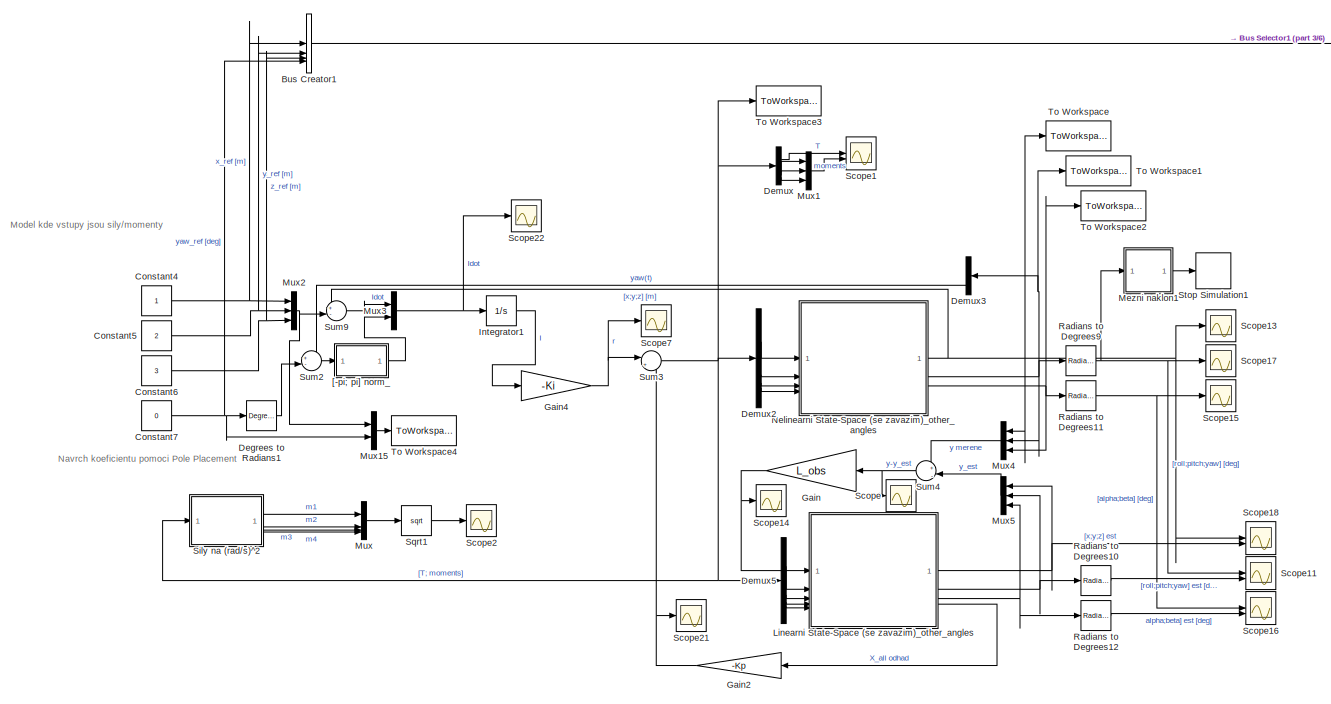
[diagram: root canvas - part 1/6, top left region]
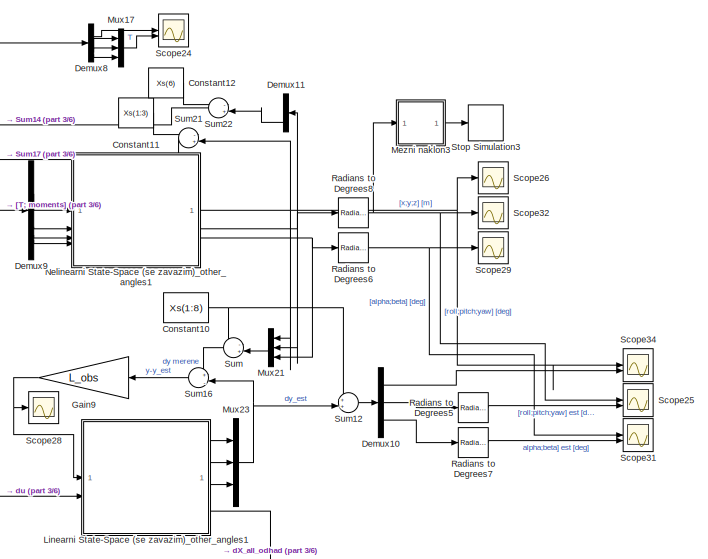
[diagram: root canvas - part 2/6, top right region]
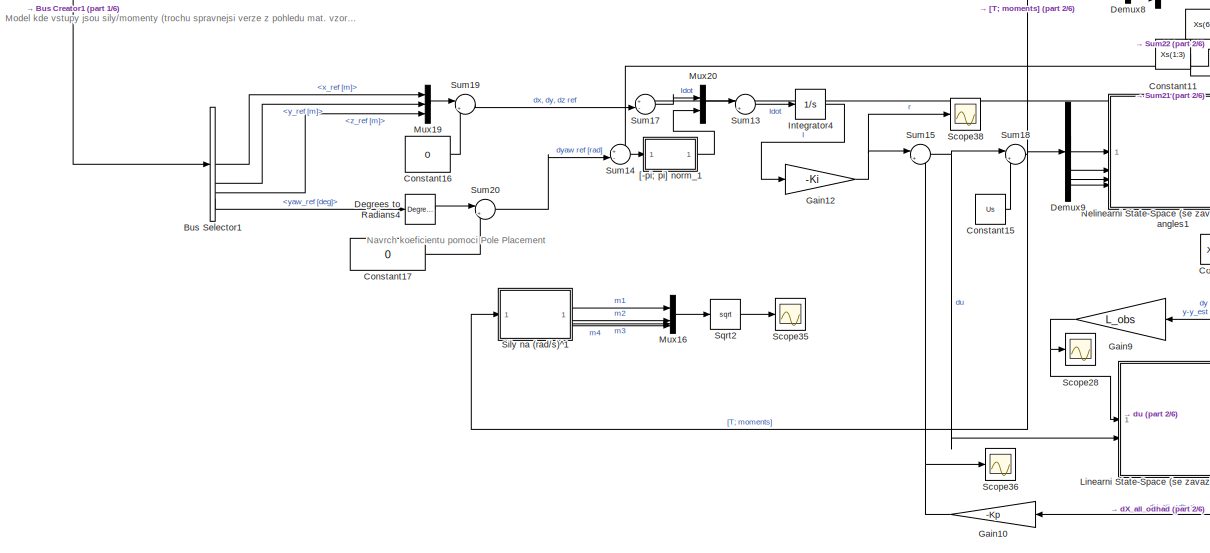
[diagram: root canvas - part 3/6, top right region]
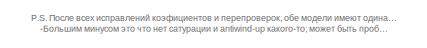
[diagram: root canvas - part 4/6, middle left region]
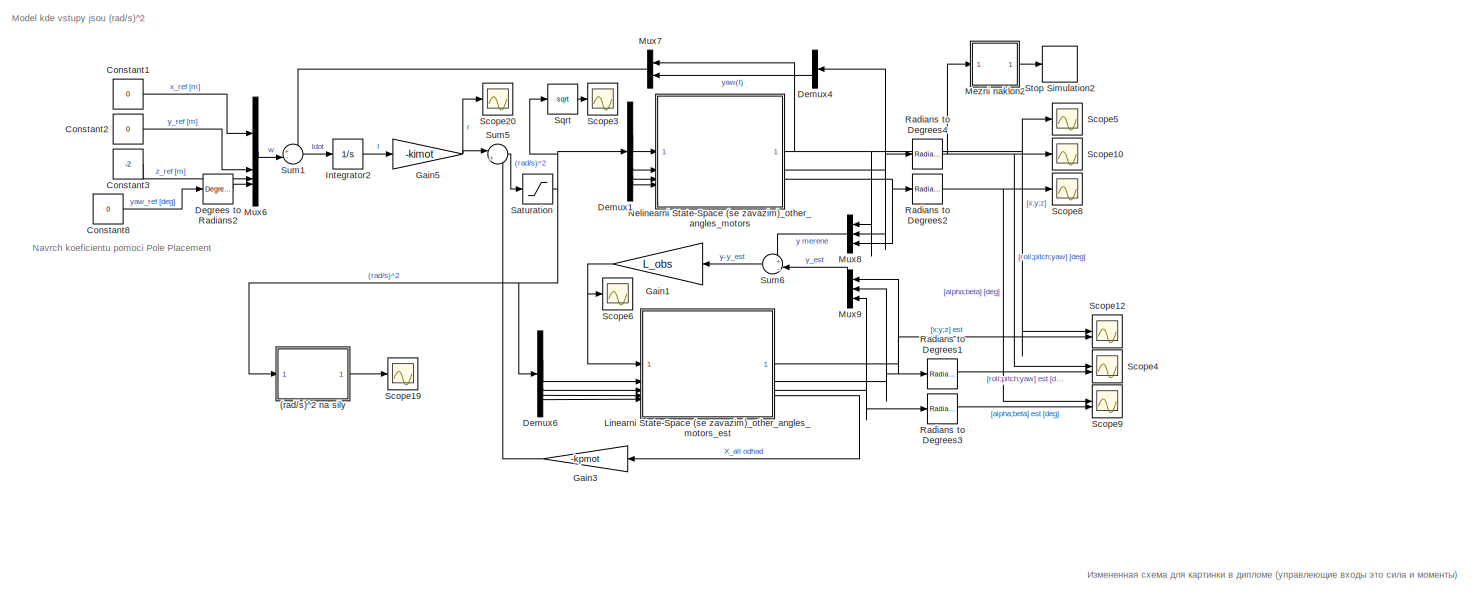
[diagram: root canvas - part 5/6, middle left region]
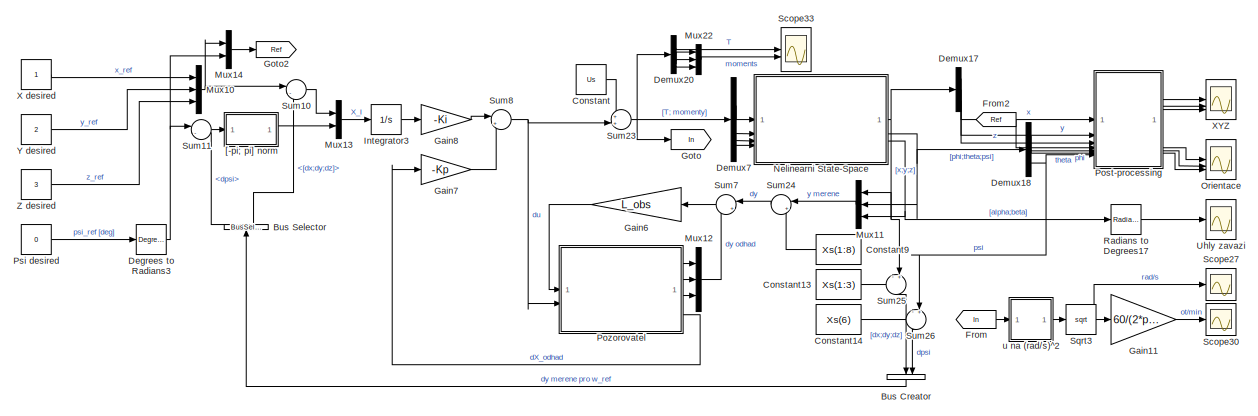
[diagram: root canvas - part 6/6, bottom center region]
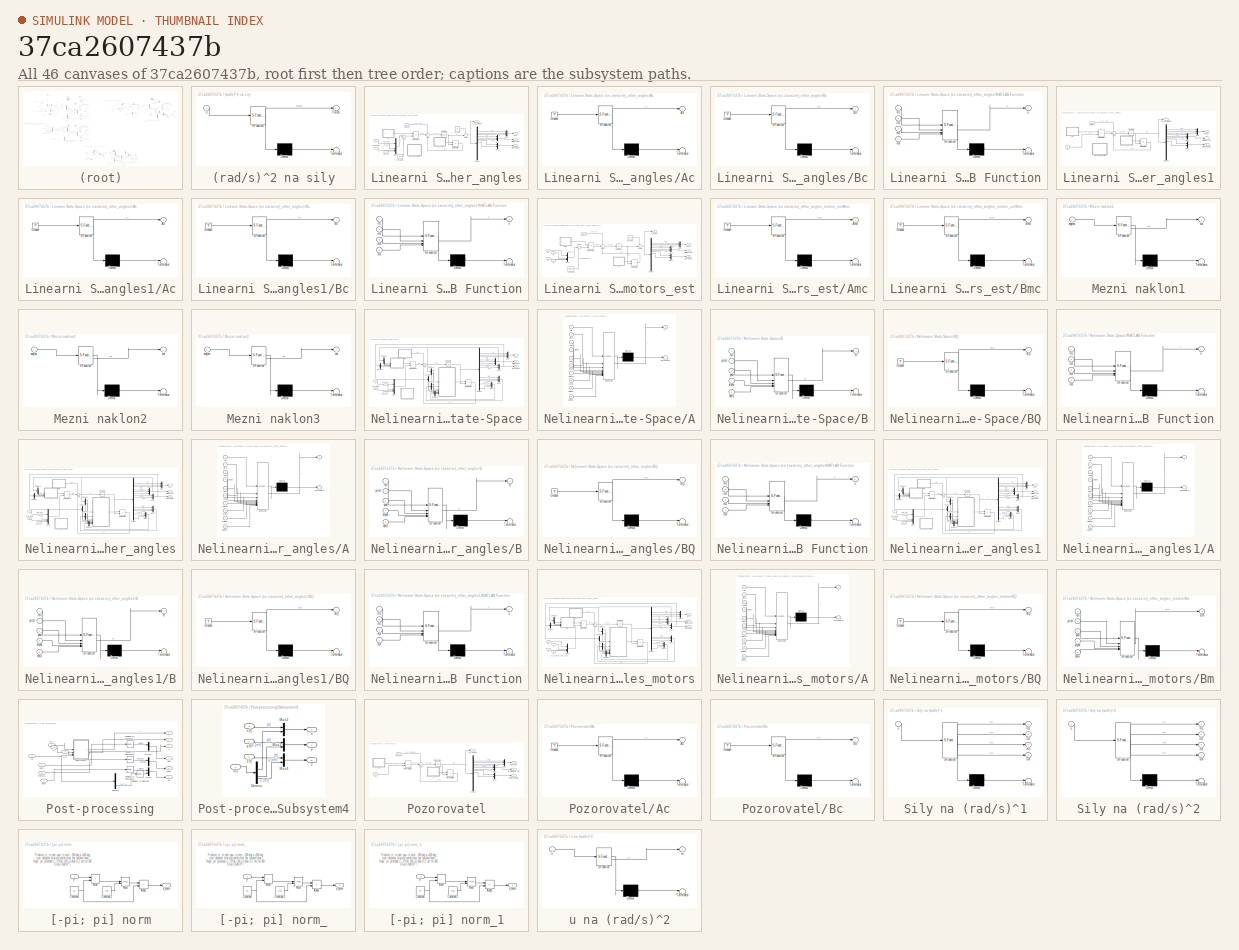
[diagram: thumbnail index - all 46 canvases of the model, root first then tree order]
MODEL slx_37ca2607437b
KIND model
CONFIG AbsTol = auto
CONFIG EnableMultiTasking = off
CONFIG FixedStep = 0.01
CONFIG MaxStep = auto
CONFIG MinStep = auto
CONFIG RelTol = 1e-3
CONFIG SampleTimeConstraint = Unconstrained
CONFIG SolverName = ode4
CONFIG StartTime = 0.0
CONFIG StopTime = 16
BLOCK [SubSystem] (rad//s)^2 na sily
  Commented = on
  ErrorFcn = Stateflow.Translate.translate
  PermitHierarchicalResolution = ExplicitOnly
  SFBlockType = MATLAB Function
  TreatAsAtomicUnit = on
BLOCK [Demux] (rad//s)^2 na sily/ Demux 
  Outputs = 1
BLOCK [S-Function] (rad//s)^2 na sily/ SFunction 
  EnableBusSupport = on
  FunctionName = sf_sfun
  Parameters = b_moment,k_thrust,l
  PortCounts = [1 2]
  SFcnIsStateOwnerBlock = off
  SFunctionDeploymentMode = off
  Tag = Stateflow S-Function 14
BLOCK [Terminator] (rad//s)^2 na sily/ Terminator 
BLOCK [Outport] (rad//s)^2 na sily/Forces
BLOCK [Inport] (rad//s)^2 na sily/U
BLOCK [BusCreator] Bus Creator
  Commented = on
  DisplayOption = bar
  InheritFromInputs = on
  Inputs = 2
  NameLocation = left
BLOCK [BusCreator] Bus Creator1
  DisplayOption = bar
  InheritFromInputs = on
  Inputs = 4
BLOCK [BusSelector] Bus Selector
  Commented = on
  NameLocation = right
  OutputSignals = dpsi,[dx;dy;dz]
BLOCK [BusSelector] Bus Selector1
  OutputSignals = x_ref [m],y_ref [m],z_ref [m],yaw_ref [deg]
BLOCK [Constant] Constant
  Commented = on
  Value = Us
BLOCK [Constant] Constant1
  Commented = on
  Value = 0
BLOCK [Constant] Constant10
  Value = Xs(1:8)
BLOCK [Constant] Constant11
  Value = Xs(1:3)
BLOCK [Constant] Constant12
  Value = Xs(6)
BLOCK [Constant] Constant13
  Commented = on
  Value = Xs(1:3)
BLOCK [Constant] Constant14
  Commented = on
  Value = Xs(6)
BLOCK [Constant] Constant15
  Value = Us
BLOCK [Constant] Constant16
  Value = 0
BLOCK [Constant] Constant17
  Value = 0
BLOCK [Constant] Constant2
  Commented = on
  Value = 0
BLOCK [Constant] Constant3
  Commented = on
  Value = -2
BLOCK [Constant] Constant4
BLOCK [Constant] Constant5
  Value = 2
BLOCK [Constant] Constant6
  Value = 3
BLOCK [Constant] Constant7
  Value = 0
BLOCK [Constant] Constant8
  Commented = on
  Value = 0
BLOCK [Constant] Constant9
  Commented = on
  Value = Xs(1:8)
BLOCK [Reference] Degrees to Radians1  REF=simulink_extras/Transformations/Degrees to
Radians
  SourceBlock = simulink_extras/Transformations/Degrees to\nRadians
  SourceType = DegreesToRadians
BLOCK [Reference] Degrees to Radians2  REF=simulink_extras/Transformations/Degrees to
Radians
  Commented = on
  SourceBlock = simulink_extras/Transformations/Degrees to\nRadians
  SourceType = DegreesToRadians
BLOCK [Reference] Degrees to Radians3  REF=simulink_extras/Transformations/Degrees to
Radians
  Commented = on
  SourceBlock = simulink_extras/Transformations/Degrees to\nRadians
  SourceType = DegreesToRadians
BLOCK [Reference] Degrees to Radians4  REF=simulink_extras/Transformations/Degrees to
Radians
  SourceBlock = simulink_extras/Transformations/Degrees to\nRadians
  SourceType = DegreesToRadians
BLOCK [Demux] Demux
BLOCK [Demux] Demux1
  Commented = on
BLOCK [Demux] Demux10
  Outputs = 3
BLOCK [Demux] Demux11
  Outputs = 3
BLOCK [Demux] Demux17
  Commented = on
  Outputs = 3
BLOCK [Demux] Demux18
  Commented = on
  Outputs = 3
BLOCK [Demux] Demux2
BLOCK [Demux] Demux20
  Commented = on
BLOCK [Demux] Demux3
  Outputs = 3
BLOCK [Demux] Demux4
  Commented = on
  Outputs = 3
BLOCK [Demux] Demux5
BLOCK [Demux] Demux6
  Commented = on
BLOCK [Demux] Demux7
  Commented = on
BLOCK [Demux] Demux8
BLOCK [Demux] Demux9
BLOCK [From] From
  Commented = on
  GotoTag = In
BLOCK [From] From2
  Commented = on
  GotoTag = Ref
BLOCK [Gain] Gain
  Gain = L_obs
  Multiplication = Matrix(K*u)
BLOCK [Gain] Gain1
  Commented = on
  Gain = L_obs
  Multiplication = Matrix(K*u)
BLOCK [Gain] Gain10
  Gain = -Kp
  Multiplication = Matrix(K*u)
BLOCK [Gain] Gain11
  Commented = on
  Gain = 60/(2*pi)
BLOCK [Gain] Gain12
  Gain = -Ki
  Multiplication = Matrix(K*u)
BLOCK [Gain] Gain2
  Gain = -Kp
  Multiplication = Matrix(K*u)
BLOCK [Gain] Gain3
  Commented = on
  Gain = -kpmot
  Multiplication = Matrix(K*u)
BLOCK [Gain] Gain4
  Gain = -Ki
  Multiplication = Matrix(K*u)
BLOCK [Gain] Gain5
  Commented = on
  Gain = -kimot
  Multiplication = Matrix(K*u)
BLOCK [Gain] Gain6
  Commented = on
  Gain = L_obs
  Multiplication = Matrix(K*u)
BLOCK [Gain] Gain7
  Commented = on
  Gain = -Kp
  Multiplication = Matrix(K*u)
BLOCK [Gain] Gain8
  Commented = on
  Gain = -Ki
  Multiplication = Matrix(K*u)
BLOCK [Gain] Gain9
  Gain = L_obs
  Multiplication = Matrix(K*u)
BLOCK [Goto] Goto
  Commented = on
  GotoTag = In
BLOCK [Goto] Goto2
  Commented = on
  GotoTag = Ref
BLOCK [Integrator] Integrator1
  InitialCondition = init_int_ref
BLOCK [Integrator] Integrator2
  Commented = on
  InitialCondition = init_int_ref_motor
BLOCK [Integrator] Integrator3
  Commented = on
  InitialCondition = init_int_dref
BLOCK [Integrator] Integrator4
  InitialCondition = init_int_dref
BLOCK [SubSystem] Linearni State-Space (se zavazim)_other_angles
BLOCK [SubSystem] Linearni State-Space (se zavazim)_other_angles/Ac
  ErrorFcn = Stateflow.Translate.translate
  PermitHierarchicalResolution = ExplicitOnly
  SFBlockType = MATLAB Function
  TreatAsAtomicUnit = on
BLOCK [Demux] Linearni State-Space (se zavazim)_other_angles/Ac/ Demux 
  Outputs = 1
BLOCK [Ground] Linearni State-Space (se zavazim)_other_angles/Ac/ Ground 
BLOCK [S-Function] Linearni State-Space (se zavazim)_other_angles/Ac/ SFunction 
  EnableBusSupport = on
  FunctionName = sf_sfun
  Parameters = Ip,M,d,g,m
  PortCounts = [1 2]
  SFcnIsStateOwnerBlock = off
  SFunctionDeploymentMode = off
  Tag = Stateflow S-Function 4
BLOCK [Terminator] Linearni State-Space (se zavazim)_other_angles/Ac/ Terminator 
BLOCK [Outport] Linearni State-Space (se zavazim)_other_angles/Ac/Ac
BLOCK [SubSystem] Linearni State-Space (se zavazim)_other_angles/Bc
  ErrorFcn = Stateflow.Translate.translate
  PermitHierarchicalResolution = ExplicitOnly
  SFBlockType = MATLAB Function
  TreatAsAtomicUnit = on
BLOCK [Demux] Linearni State-Space (se zavazim)_other_angles/Bc/ Demux 
  Outputs = 1
BLOCK [Ground] Linearni State-Space (se zavazim)_other_angles/Bc/ Ground 
BLOCK [S-Function] Linearni State-Space (se zavazim)_other_angles/Bc/ SFunction 
  EnableBusSupport = on
  FunctionName = sf_sfun
  Parameters = Ixx,Iyy,Izz,M,m
  PortCounts = [1 2]
  SFcnIsStateOwnerBlock = off
  SFunctionDeploymentMode = off
  Tag = Stateflow S-Function 5
BLOCK [Terminator] Linearni State-Space (se zavazim)_other_angles/Bc/ Terminator 
BLOCK [Outport] Linearni State-Space (se zavazim)_other_angles/Bc/Bc
BLOCK [Constant] Linearni State-Space (se zavazim)_other_angles/Constant
  Value = Xs
BLOCK [Constant] Linearni State-Space (se zavazim)_other_angles/Constant1
  Value = Us
BLOCK [Demux] Linearni State-Space (se zavazim)_other_angles/Demux
  Outputs = 16
BLOCK [Integrator] Linearni State-Space (se zavazim)_other_angles/Integrator1
  InitialCondition = Xinit_ss - Xs
BLOCK [Inport] Linearni State-Space (se zavazim)_other_angles/Korekce
BLOCK [SubSystem] Linearni State-Space (se zavazim)_other_angles/MATLAB Function
  Commented = on
  ErrorFcn = Stateflow.Translate.translate
  PermitHierarchicalResolution = ExplicitOnly
  SFBlockType = MATLAB Function
  TreatAsAtomicUnit = on
BLOCK [Demux] Linearni State-Space (se zavazim)_other_angles/MATLAB Function/ Demux 
  Outputs = 1
BLOCK [S-Function] Linearni State-Space (se zavazim)_other_angles/MATLAB Function/ SFunction 
  EnableBusSupport = on
  FunctionName = sf_sfun
  Parameters = L,b_moment,k_thrust
  PortCounts = [4 2]
  SFcnIsStateOwnerBlock = off
  SFunctionDeploymentMode = off
  Tag = Stateflow S-Function 6
BLOCK [Terminator] Linearni State-Space (se zavazim)_other_angles/MATLAB Function/ Terminator 
BLOCK [Inport] Linearni State-Space (se zavazim)_other_angles/MATLAB Function/m1
BLOCK [Inport] Linearni State-Space (se zavazim)_other_angles/MATLAB Function/m2
  Port = 2
BLOCK [Inport] Linearni State-Space (se zavazim)_other_angles/MATLAB Function/m3
  Port = 3
BLOCK [Inport] Linearni State-Space (se zavazim)_other_angles/MATLAB Function/m4
  Port = 4
BLOCK [Outport] Linearni State-Space (se zavazim)_other_angles/MATLAB Function/u
BLOCK [Product] Linearni State-Space (se zavazim)_other_angles/MatrixMultiply
  Multiplication = Matrix(*)
BLOCK [Product] Linearni State-Space (se zavazim)_other_angles/MatrixMultiply1
  Multiplication = Matrix(*)
BLOCK [Mux] Linearni State-Space (se zavazim)_other_angles/Mux
  DisplayOption = bar
  Inputs = 3
BLOCK [Mux] Linearni State-Space (se zavazim)_other_angles/Mux1
  DisplayOption = bar
  Inputs = 3
BLOCK [Mux] Linearni State-Space (se zavazim)_other_angles/Mux2
  DisplayOption = bar
  Inputs = 2
BLOCK [Mux] Linearni State-Space (se zavazim)_other_angles/Mux5
  DisplayOption = bar
BLOCK [Sum] Linearni State-Space (se zavazim)_other_angles/Sum
  Inputs = +++
BLOCK [Sum] Linearni State-Space (se zavazim)_other_angles/Sum1
  Inputs = ++|
BLOCK [Sum] Linearni State-Space (se zavazim)_other_angles/Sum2
  Inputs = |+-
BLOCK [Inport] Linearni State-Space (se zavazim)_other_angles/T
  Port = 2
BLOCK [Inport] Linearni State-Space (se zavazim)_other_angles/Tau_phi
  Port = 3
BLOCK [Inport] Linearni State-Space (se zavazim)_other_angles/Tau_psi
  Port = 5
BLOCK [Inport] Linearni State-Space (se zavazim)_other_angles/Tau_theta
  Port = 4
BLOCK [Outport] Linearni State-Space (se zavazim)_other_angles/X_all_estimate
  Port = 4
BLOCK [Outport] Linearni State-Space (se zavazim)_other_angles/[alpha;beta]
  Port = 3
BLOCK [Outport] Linearni State-Space (se zavazim)_other_angles/[roll;pitch;yaw]
  Port = 2
BLOCK [Outport] Linearni State-Space (se zavazim)_other_angles/[x;y;z]
BLOCK [SubSystem] Linearni State-Space (se zavazim)_other_angles1
BLOCK [SubSystem] Linearni State-Space (se zavazim)_other_angles1/Ac
  ErrorFcn = Stateflow.Translate.translate
  PermitHierarchicalResolution = ExplicitOnly
  SFBlockType = MATLAB Function
  TreatAsAtomicUnit = on
BLOCK [Demux] Linearni State-Space (se zavazim)_other_angles1/Ac/ Demux 
  Outputs = 1
BLOCK [Ground] Linearni State-Space (se zavazim)_other_angles1/Ac/ Ground 
BLOCK [S-Function] Linearni State-Space (se zavazim)_other_angles1/Ac/ SFunction 
  EnableBusSupport = on
  FunctionName = sf_sfun
  Parameters = Ip,M,d,g,m
  PortCounts = [1 2]
  SFcnIsStateOwnerBlock = off
  SFunctionDeploymentMode = off
  Tag = Stateflow S-Function 18
BLOCK [Terminator] Linearni State-Space (se zavazim)_other_angles1/Ac/ Terminator 
BLOCK [Outport] Linearni State-Space (se zavazim)_other_angles1/Ac/Ac
BLOCK [SubSystem] Linearni State-Space (se zavazim)_other_angles1/Bc
  ErrorFcn = Stateflow.Translate.translate
  PermitHierarchicalResolution = ExplicitOnly
  SFBlockType = MATLAB Function
  TreatAsAtomicUnit = on
BLOCK [Demux] Linearni State-Space (se zavazim)_other_angles1/Bc/ Demux 
  Outputs = 1
BLOCK [Ground] Linearni State-Space (se zavazim)_other_angles1/Bc/ Ground 
BLOCK [S-Function] Linearni State-Space (se zavazim)_other_angles1/Bc/ SFunction 
  EnableBusSupport = on
  FunctionName = sf_sfun
  Parameters = Ixx,Iyy,Izz,M,m
  PortCounts = [1 2]
  SFcnIsStateOwnerBlock = off
  SFunctionDeploymentMode = off
  Tag = Stateflow S-Function 19
BLOCK [Terminator] Linearni State-Space (se zavazim)_other_angles1/Bc/ Terminator 
BLOCK [Outport] Linearni State-Space (se zavazim)_other_angles1/Bc/Bc
BLOCK [Demux] Linearni State-Space (se zavazim)_other_angles1/Demux
  Outputs = 16
BLOCK [Integrator] Linearni State-Space (se zavazim)_other_angles1/Integrator1
  InitialCondition = Xinit_ss - Xs
BLOCK [Inport] Linearni State-Space (se zavazim)_other_angles1/Korekce
BLOCK [SubSystem] Linearni State-Space (se zavazim)_other_angles1/MATLAB Function
  Commented = on
  ErrorFcn = Stateflow.Translate.translate
  PermitHierarchicalResolution = ExplicitOnly
  SFBlockType = MATLAB Function
  TreatAsAtomicUnit = on
BLOCK [Demux] Linearni State-Space (se zavazim)_other_angles1/MATLAB Function/ Demux 
  Outputs = 1
BLOCK [S-Function] Linearni State-Space (se zavazim)_other_angles1/MATLAB Function/ SFunction 
  EnableBusSupport = on
  FunctionName = sf_sfun
  Parameters = L,b_moment,k_thrust
  PortCounts = [4 2]
  SFcnIsStateOwnerBlock = off
  SFunctionDeploymentMode = off
  Tag = Stateflow S-Function 20
BLOCK [Terminator] Linearni State-Space (se zavazim)_other_angles1/MATLAB Function/ Terminator 
BLOCK [Inport] Linearni State-Space (se zavazim)_other_angles1/MATLAB Function/m1
BLOCK [Inport] Linearni State-Space (se zavazim)_other_angles1/MATLAB Function/m2
  Port = 2
BLOCK [Inport] Linearni State-Space (se zavazim)_other_angles1/MATLAB Function/m3
  Port = 3
BLOCK [Inport] Linearni State-Space (se zavazim)_other_angles1/MATLAB Function/m4
  Port = 4
BLOCK [Outport] Linearni State-Space (se zavazim)_other_angles1/MATLAB Function/u
BLOCK [Product] Linearni State-Space (se zavazim)_other_angles1/MatrixMultiply
  Multiplication = Matrix(*)
BLOCK [Product] Linearni State-Space (se zavazim)_other_angles1/MatrixMultiply1
  Multiplication = Matrix(*)
BLOCK [Mux] Linearni State-Space (se zavazim)_other_angles1/Mux
  DisplayOption = bar
  Inputs = 3
BLOCK [Mux] Linearni State-Space (se zavazim)_other_angles1/Mux1
  DisplayOption = bar
  Inputs = 3
BLOCK [Mux] Linearni State-Space (se zavazim)_other_angles1/Mux2
  DisplayOption = bar
  Inputs = 2
BLOCK [Sum] Linearni State-Space (se zavazim)_other_angles1/Sum
  Inputs = +++
BLOCK [Outport] Linearni State-Space (se zavazim)_other_angles1/dX_all_estimate
  Port = 4
BLOCK [Outport] Linearni State-Space (se zavazim)_other_angles1/d[alpha;beta]
  Port = 3
BLOCK [Outport] Linearni State-Space (se zavazim)_other_angles1/d[roll;pitch;yaw]
  Port = 2
BLOCK [Outport] Linearni State-Space (se zavazim)_other_angles1/d[x;y;z]
BLOCK [Inport] Linearni State-Space (se zavazim)_other_angles1/du
  Port = 2
BLOCK [SubSystem] Linearni State-Space (se zavazim)_other_angles_motors_est
  Commented = on
BLOCK [SubSystem] Linearni State-Space (se zavazim)_other_angles_motors_est/Amc
  ErrorFcn = Stateflow.Translate.translate
  PermitHierarchicalResolution = ExplicitOnly
  SFBlockType = MATLAB Function
  TreatAsAtomicUnit = on
BLOCK [Demux] Linearni State-Space (se zavazim)_other_angles_motors_est/Amc/ Demux 
  Outputs = 1
BLOCK [Ground] Linearni State-Space (se zavazim)_other_angles_motors_est/Amc/ Ground 
BLOCK [S-Function] Linearni State-Space (se zavazim)_other_angles_motors_est/Amc/ SFunction 
  EnableBusSupport = on
  FunctionName = sf_sfun
  Parameters = M,d,g,m
  PortCounts = [1 2]
  SFcnIsStateOwnerBlock = off
  SFunctionDeploymentMode = off
  Tag = Stateflow S-Function 32
BLOCK [Terminator] Linearni State-Space (se zavazim)_other_angles_motors_est/Amc/ Terminator 
BLOCK [Outport] Linearni State-Space (se zavazim)_other_angles_motors_est/Amc/Amc
BLOCK [SubSystem] Linearni State-Space (se zavazim)_other_angles_motors_est/Bmc
  ErrorFcn = Stateflow.Translate.translate
  PermitHierarchicalResolution = ExplicitOnly
  SFBlockType = MATLAB Function
  TreatAsAtomicUnit = on
BLOCK [Demux] Linearni State-Space (se zavazim)_other_angles_motors_est/Bmc/ Demux 
  Outputs = 1
BLOCK [Ground] Linearni State-Space (se zavazim)_other_angles_motors_est/Bmc/ Ground 
BLOCK [S-Function] Linearni State-Space (se zavazim)_other_angles_motors_est/Bmc/ SFunction 
  EnableBusSupport = on
  FunctionName = sf_sfun
  Parameters = Ixx,Iyy,Izz,M,b_moment,k_thrust,l,m
  PortCounts = [1 2]
  SFcnIsStateOwnerBlock = off
  SFunctionDeploymentMode = off
  Tag = Stateflow S-Function 33
BLOCK [Terminator] Linearni State-Space (se zavazim)_other_angles_motors_est/Bmc/ Terminator 
BLOCK [Outport] Linearni State-Space (se zavazim)_other_angles_motors_est/Bmc/Bmc
BLOCK [Constant] Linearni State-Space (se zavazim)_other_angles_motors_est/Constant
  Value = Xs_p
BLOCK [Constant] Linearni State-Space (se zavazim)_other_angles_motors_est/Constant1
  Value = Uws_p
BLOCK [Demux] Linearni State-Space (se zavazim)_other_angles_motors_est/Demux
  Outputs = 16
BLOCK [Integrator] Linearni State-Space (se zavazim)_other_angles_motors_est/Integrator1
  InitialCondition = Xinit_ss
BLOCK [Inport] Linearni State-Space (se zavazim)_other_angles_motors_est/Korekce
BLOCK [Product] Linearni State-Space (se zavazim)_other_angles_motors_est/MatrixMultiply
  Multiplication = Matrix(*)
BLOCK [Product] Linearni State-Space (se zavazim)_other_angles_motors_est/MatrixMultiply1
  Multiplication = Matrix(*)
BLOCK [Mux] Linearni State-Space (se zavazim)_other_angles_motors_est/Mux
  DisplayOption = bar
  Inputs = 3
BLOCK [Mux] Linearni State-Space (se zavazim)_other_angles_motors_est/Mux1
  DisplayOption = bar
  Inputs = 3
BLOCK [Mux] Linearni State-Space (se zavazim)_other_angles_motors_est/Mux2
  DisplayOption = bar
  Inputs = 2
BLOCK [Mux] Linearni State-Space (se zavazim)_other_angles_motors_est/Mux5
  DisplayOption = bar
BLOCK [Sum] Linearni State-Space (se zavazim)_other_angles_motors_est/Sum
  Inputs = +++
BLOCK [Sum] Linearni State-Space (se zavazim)_other_angles_motors_est/Sum1
  Inputs = ++|
BLOCK [Sum] Linearni State-Space (se zavazim)_other_angles_motors_est/Sum2
  Inputs = |+-
BLOCK [Inport] Linearni State-Space (se zavazim)_other_angles_motors_est/U1
  Port = 2
BLOCK [Inport] Linearni State-Space (se zavazim)_other_angles_motors_est/U2
  Port = 3
BLOCK [Inport] Linearni State-Space (se zavazim)_other_angles_motors_est/U3
  Port = 4
BLOCK [Inport] Linearni State-Space (se zavazim)_other_angles_motors_est/U4
  Port = 5
BLOCK [Outport] Linearni State-Space (se zavazim)_other_angles_motors_est/X_all_est
  Port = 4
BLOCK [Outport] Linearni State-Space (se zavazim)_other_angles_motors_est/[alpha;beta]
  Port = 3
BLOCK [Outport] Linearni State-Space (se zavazim)_other_angles_motors_est/[roll;pitch;yaw]
  Port = 2
BLOCK [Outport] Linearni State-Space (se zavazim)_other_angles_motors_est/[x;y;z]
BLOCK [SubSystem] Mezni naklon1
  ErrorFcn = Stateflow.Translate.translate
  PermitHierarchicalResolution = ExplicitOnly
  SFBlockType = MATLAB Function
  TreatAsAtomicUnit = on
BLOCK [Demux] Mezni naklon1/ Demux 
  Outputs = 1
BLOCK [S-Function] Mezni naklon1/ SFunction 
  EnableBusSupport = on
  FunctionName = sf_sfun
  PortCounts = [1 2]
  SFcnIsStateOwnerBlock = off
  SFunctionDeploymentMode = off
  Tag = Stateflow S-Function 2
BLOCK [Terminator] Mezni naklon1/ Terminator 
BLOCK [Inport] Mezni naklon1/angles
BLOCK [Outport] Mezni naklon1/out
BLOCK [SubSystem] Mezni naklon2
  Commented = on
  ErrorFcn = Stateflow.Translate.translate
  PermitHierarchicalResolution = ExplicitOnly
  SFBlockType = MATLAB Function
  TreatAsAtomicUnit = on
BLOCK [Demux] Mezni naklon2/ Demux 
  Outputs = 1
BLOCK [S-Function] Mezni naklon2/ SFunction 
  EnableBusSupport = on
  FunctionName = sf_sfun
  PortCounts = [1 2]
  SFcnIsStateOwnerBlock = off
  SFunctionDeploymentMode = off
  Tag = Stateflow S-Function 9
BLOCK [Terminator] Mezni naklon2/ Terminator 
BLOCK [Inport] Mezni naklon2/angles
BLOCK [Outport] Mezni naklon2/out
BLOCK [SubSystem] Mezni naklon3
  ErrorFcn = Stateflow.Translate.translate
  PermitHierarchicalResolution = ExplicitOnly
  SFBlockType = MATLAB Function
  TreatAsAtomicUnit = on
BLOCK [Demux] Mezni naklon3/ Demux 
  Outputs = 1
BLOCK [S-Function] Mezni naklon3/ SFunction 
  EnableBusSupport = on
  FunctionName = sf_sfun
  PortCounts = [1 2]
  SFcnIsStateOwnerBlock = off
  SFunctionDeploymentMode = off
  Tag = Stateflow S-Function 25
BLOCK [Terminator] Mezni naklon3/ Terminator 
BLOCK [Inport] Mezni naklon3/angles
BLOCK [Outport] Mezni naklon3/out
BLOCK [Mux] Mux
  DisplayOption = bar
BLOCK [Mux] Mux1
  DisplayOption = bar
  Inputs = 3
BLOCK [Mux] Mux10
  Commented = on
  DisplayOption = bar
  Inputs = 3
BLOCK [Mux] Mux11
  Commented = on
  DisplayOption = bar
  Inputs = 3
BLOCK [Mux] Mux12
  Commented = on
  DisplayOption = bar
  Inputs = 3
  NameLocation = top
BLOCK [Mux] Mux13
  Commented = on
  DisplayOption = bar
  Inputs = 2
BLOCK [Mux] Mux14
  Commented = on
  DisplayOption = bar
  Inputs = 2
BLOCK [Mux] Mux15
  DisplayOption = bar
  Inputs = 2
BLOCK [Mux] Mux16
  DisplayOption = bar
BLOCK [Mux] Mux17
  DisplayOption = bar
  Inputs = 3
BLOCK [Mux] Mux19
  DisplayOption = bar
  Inputs = 3
BLOCK [Mux] Mux2
  DisplayOption = bar
  Inputs = 3
BLOCK [Mux] Mux20
  DisplayOption = bar
  Inputs = 2
BLOCK [Mux] Mux21
  DisplayOption = bar
  Inputs = 3
BLOCK [Mux] Mux22
  Commented = on
  DisplayOption = bar
  Inputs = 3
BLOCK [Mux] Mux23
  DisplayOption = bar
  Inputs = 3
  NameLocation = top
BLOCK [Mux] Mux3
  DisplayOption = bar
  Inputs = 2
BLOCK [Mux] Mux4
  DisplayOption = bar
  Inputs = 3
BLOCK [Mux] Mux5
  DisplayOption = bar
  Inputs = 3
BLOCK [Mux] Mux6
  Commented = on
  DisplayOption = bar
BLOCK [Mux] Mux7
  Commented = on
  DisplayOption = bar
  Inputs = 2
BLOCK [Mux] Mux8
  Commented = on
  DisplayOption = bar
  Inputs = 3
BLOCK [Mux] Mux9
  Commented = on
  DisplayOption = bar
  Inputs = 3
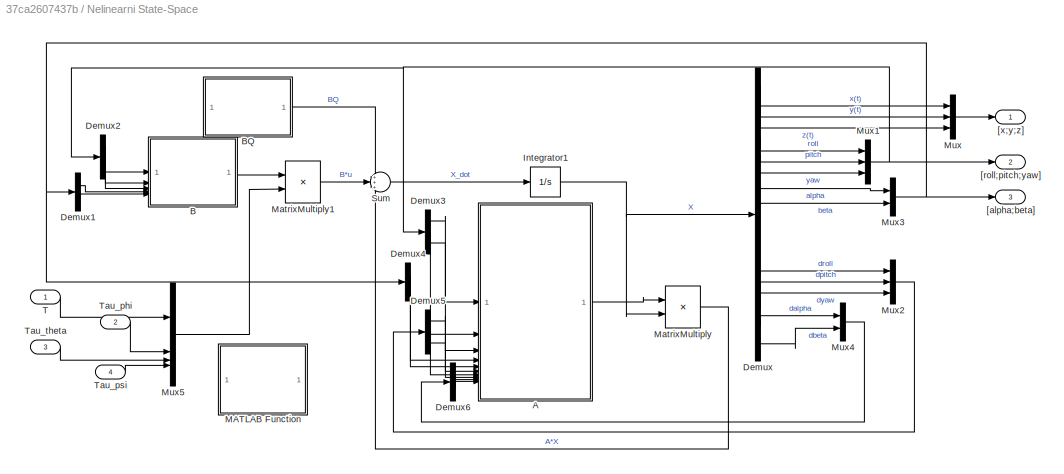
BLOCK [SubSystem] Nelinearni State-Space
  Commented = on
BLOCK [SubSystem] Nelinearni State-Space (se zavazim)_other_angles
BLOCK [SubSystem] Nelinearni State-Space (se zavazim)_other_angles/A
  ErrorFcn = Stateflow.Translate.translate
  PermitHierarchicalResolution = ExplicitOnly
  SFBlockType = MATLAB Function
  TreatAsAtomicUnit = on
BLOCK [Demux] Nelinearni State-Space (se zavazim)_other_angles/A/ Demux 
  Outputs = 1
BLOCK [S-Function] Nelinearni State-Space (se zavazim)_other_angles/A/ SFunction 
  EnableBusSupport = on
  FunctionName = sf_sfun
  Parameters = Ip,Ixx,Iyy,Izz,M,d,m
  PortCounts = [10 2]
  SFcnIsStateOwnerBlock = off
  SFunctionDeploymentMode = off
  Tag = Stateflow S-Function 21
BLOCK [Terminator] Nelinearni State-Space (se zavazim)_other_angles/A/ Terminator 
BLOCK [Outport] Nelinearni State-Space (se zavazim)_other_angles/A/A
BLOCK [Inport] Nelinearni State-Space (se zavazim)_other_angles/A/alpha
  Port = 4
BLOCK [Inport] Nelinearni State-Space (se zavazim)_other_angles/A/beta
  Port = 5
BLOCK [Inport] Nelinearni State-Space (se zavazim)_other_angles/A/dalpha
  Port = 9
BLOCK [Inport] Nelinearni State-Space (se zavazim)_other_angles/A/dbeta
  Port = 10
BLOCK [Inport] Nelinearni State-Space (se zavazim)_other_angles/A/dpitch
  Port = 7
BLOCK [Inport] Nelinearni State-Space (se zavazim)_other_angles/A/droll
  Port = 6
BLOCK [Inport] Nelinearni State-Space (se zavazim)_other_angles/A/dyaw
  Port = 8
BLOCK [Inport] Nelinearni State-Space (se zavazim)_other_angles/A/pitch
  Port = 2
BLOCK [Inport] Nelinearni State-Space (se zavazim)_other_angles/A/roll
BLOCK [Inport] Nelinearni State-Space (se zavazim)_other_angles/A/yaw
  Port = 3
BLOCK [SubSystem] Nelinearni State-Space (se zavazim)_other_angles/B
  ErrorFcn = Stateflow.Translate.translate
  PermitHierarchicalResolution = ExplicitOnly
  SFBlockType = MATLAB Function
  TreatAsAtomicUnit = on
BLOCK [Demux] Nelinearni State-Space (se zavazim)_other_angles/B/ Demux 
  Outputs = 1
BLOCK [S-Function] Nelinearni State-Space (se zavazim)_other_angles/B/ SFunction 
  EnableBusSupport = on
  FunctionName = sf_sfun
  Parameters = Ip,Ixx,Iyy,Izz,M,d,m
  PortCounts = [5 2]
  SFcnIsStateOwnerBlock = off
  SFunctionDeploymentMode = off
  Tag = Stateflow S-Function 22
BLOCK [Terminator] Nelinearni State-Space (se zavazim)_other_angles/B/ Terminator 
BLOCK [Outport] Nelinearni State-Space (se zavazim)_other_angles/B/B
BLOCK [Inport] Nelinearni State-Space (se zavazim)_other_angles/B/alpha
  Port = 4
BLOCK [Inport] Nelinearni State-Space (se zavazim)_other_angles/B/beta
  Port = 5
BLOCK [Inport] Nelinearni State-Space (se zavazim)_other_angles/B/pitch
  Port = 2
BLOCK [Inport] Nelinearni State-Space (se zavazim)_other_angles/B/roll
BLOCK [Inport] Nelinearni State-Space (se zavazim)_other_angles/B/yaw
  Port = 3
BLOCK [SubSystem] Nelinearni State-Space (se zavazim)_other_angles/BQ
  ErrorFcn = Stateflow.Translate.translate
  PermitHierarchicalResolution = ExplicitOnly
  SFBlockType = MATLAB Function
  TreatAsAtomicUnit = on
BLOCK [Demux] Nelinearni State-Space (se zavazim)_other_angles/BQ/ Demux 
  Outputs = 1
BLOCK [Ground] Nelinearni State-Space (se zavazim)_other_angles/BQ/ Ground 
BLOCK [S-Function] Nelinearni State-Space (se zavazim)_other_angles/BQ/ SFunction 
  EnableBusSupport = on
  FunctionName = sf_sfun
  Parameters = g
  PortCounts = [1 2]
  SFcnIsStateOwnerBlock = off
  SFunctionDeploymentMode = off
  Tag = Stateflow S-Function 23
BLOCK [Terminator] Nelinearni State-Space (se zavazim)_other_angles/BQ/ Terminator 
BLOCK [Outport] Nelinearni State-Space (se zavazim)_other_angles/BQ/BQ
BLOCK [Demux] Nelinearni State-Space (se zavazim)_other_angles/Demux
  Outputs = 16
BLOCK [Demux] Nelinearni State-Space (se zavazim)_other_angles/Demux1
  Outputs = 2
BLOCK [Demux] Nelinearni State-Space (se zavazim)_other_angles/Demux2
  Outputs = 3
BLOCK [Demux] Nelinearni State-Space (se zavazim)_other_angles/Demux3
  Outputs = 3
BLOCK [Demux] Nelinearni State-Space (se zavazim)_other_angles/Demux4
  Outputs = 2
BLOCK [Demux] Nelinearni State-Space (se zavazim)_other_angles/Demux5
  Outputs = 3
BLOCK [Demux] Nelinearni State-Space (se zavazim)_other_angles/Demux6
  Outputs = 2
BLOCK [Integrator] Nelinearni State-Space (se zavazim)_other_angles/Integrator1
  InitialCondition = Xinit_ss
BLOCK [SubSystem] Nelinearni State-Space (se zavazim)_other_angles/MATLAB Function
  Commented = on
  ErrorFcn = Stateflow.Translate.translate
  PermitHierarchicalResolution = ExplicitOnly
  SFBlockType = MATLAB Function
  TreatAsAtomicUnit = on
BLOCK [Demux] Nelinearni State-Space (se zavazim)_other_angles/MATLAB Function/ Demux 
  Outputs = 1
BLOCK [S-Function] Nelinearni State-Space (se zavazim)_other_angles/MATLAB Function/ SFunction 
  EnableBusSupport = on
  FunctionName = sf_sfun
  Parameters = L,b_moment,k_thrust
  PortCounts = [4 2]
  SFcnIsStateOwnerBlock = off
  SFunctionDeploymentMode = off
  Tag = Stateflow S-Function 24
BLOCK [Terminator] Nelinearni State-Space (se zavazim)_other_angles/MATLAB Function/ Terminator 
BLOCK [Inport] Nelinearni State-Space (se zavazim)_other_angles/MATLAB Function/m1
BLOCK [Inport] Nelinearni State-Space (se zavazim)_other_angles/MATLAB Function/m2
  Port = 2
BLOCK [Inport] Nelinearni State-Space (se zavazim)_other_angles/MATLAB Function/m3
  Port = 3
BLOCK [Inport] Nelinearni State-Space (se zavazim)_other_angles/MATLAB Function/m4
  Port = 4
BLOCK [Outport] Nelinearni State-Space (se zavazim)_other_angles/MATLAB Function/u
BLOCK [Product] Nelinearni State-Space (se zavazim)_other_angles/MatrixMultiply
  Multiplication = Matrix(*)
BLOCK [Product] Nelinearni State-Space (se zavazim)_other_angles/MatrixMultiply1
  Multiplication = Matrix(*)
BLOCK [Mux] Nelinearni State-Space (se zavazim)_other_angles/Mux
  DisplayOption = bar
  Inputs = 3
BLOCK [Mux] Nelinearni State-Space (se zavazim)_other_angles/Mux1
  DisplayOption = bar
  Inputs = 3
BLOCK [Mux] Nelinearni State-Space (se zavazim)_other_angles/Mux2
  DisplayOption = bar
  Inputs = 3
BLOCK [Mux] Nelinearni State-Space (se zavazim)_other_angles/Mux3
  DisplayOption = bar
  Inputs = 2
BLOCK [Mux] Nelinearni State-Space (se zavazim)_other_angles/Mux4
  DisplayOption = bar
  Inputs = 2
BLOCK [Mux] Nelinearni State-Space (se zavazim)_other_angles/Mux5
  DisplayOption = bar
BLOCK [Sum] Nelinearni State-Space (se zavazim)_other_angles/Sum
  Inputs = +++
BLOCK [Inport] Nelinearni State-Space (se zavazim)_other_angles/T
BLOCK [Inport] Nelinearni State-Space (se zavazim)_other_angles/Tau_phi
  Port = 2
BLOCK [Inport] Nelinearni State-Space (se zavazim)_other_angles/Tau_psi
  Port = 4
BLOCK [Inport] Nelinearni State-Space (se zavazim)_other_angles/Tau_theta
  Port = 3
BLOCK [Outport] Nelinearni State-Space (se zavazim)_other_angles/[alpha;beta]
  Port = 3
BLOCK [Outport] Nelinearni State-Space (se zavazim)_other_angles/[roll;pitch;yaw]
  Port = 2
BLOCK [Outport] Nelinearni State-Space (se zavazim)_other_angles/[x;y;z]
BLOCK [SubSystem] Nelinearni State-Space (se zavazim)_other_angles1
BLOCK [SubSystem] Nelinearni State-Space (se zavazim)_other_angles1/A
  ErrorFcn = Stateflow.Translate.translate
  PermitHierarchicalResolution = ExplicitOnly
  SFBlockType = MATLAB Function
  TreatAsAtomicUnit = on
BLOCK [Demux] Nelinearni State-Space (se zavazim)_other_angles1/A/ Demux 
  Outputs = 1
BLOCK [S-Function] Nelinearni State-Space (se zavazim)_other_angles1/A/ SFunction 
  EnableBusSupport = on
  FunctionName = sf_sfun
  Parameters = Ip,Ixx,Iyy,Izz,M,d,m
  PortCounts = [10 2]
  SFcnIsStateOwnerBlock = off
  SFunctionDeploymentMode = off
  Tag = Stateflow S-Function 26
BLOCK [Terminator] Nelinearni State-Space (se zavazim)_other_angles1/A/ Terminator 
BLOCK [Outport] Nelinearni State-Space (se zavazim)_other_angles1/A/A
BLOCK [Inport] Nelinearni State-Space (se zavazim)_other_angles1/A/alpha
  Port = 4
BLOCK [Inport] Nelinearni State-Space (se zavazim)_other_angles1/A/beta
  Port = 5
BLOCK [Inport] Nelinearni State-Space (se zavazim)_other_angles1/A/dalpha
  Port = 9
BLOCK [Inport] Nelinearni State-Space (se zavazim)_other_angles1/A/dbeta
  Port = 10
BLOCK [Inport] Nelinearni State-Space (se zavazim)_other_angles1/A/dpitch
  Port = 7
BLOCK [Inport] Nelinearni State-Space (se zavazim)_other_angles1/A/droll
  Port = 6
BLOCK [Inport] Nelinearni State-Space (se zavazim)_other_angles1/A/dyaw
  Port = 8
BLOCK [Inport] Nelinearni State-Space (se zavazim)_other_angles1/A/pitch
  Port = 2
BLOCK [Inport] Nelinearni State-Space (se zavazim)_other_angles1/A/roll
BLOCK [Inport] Nelinearni State-Space (se zavazim)_other_angles1/A/yaw
  Port = 3
BLOCK [SubSystem] Nelinearni State-Space (se zavazim)_other_angles1/B
  ErrorFcn = Stateflow.Translate.translate
  PermitHierarchicalResolution = ExplicitOnly
  SFBlockType = MATLAB Function
  TreatAsAtomicUnit = on
BLOCK [Demux] Nelinearni State-Space (se zavazim)_other_angles1/B/ Demux 
  Outputs = 1
BLOCK [S-Function] Nelinearni State-Space (se zavazim)_other_angles1/B/ SFunction 
  EnableBusSupport = on
  FunctionName = sf_sfun
  Parameters = Ip,Ixx,Iyy,Izz,M,d,m
  PortCounts = [5 2]
  SFcnIsStateOwnerBlock = off
  SFunctionDeploymentMode = off
  Tag = Stateflow S-Function 27
BLOCK [Terminator] Nelinearni State-Space (se zavazim)_other_angles1/B/ Terminator 
BLOCK [Outport] Nelinearni State-Space (se zavazim)_other_angles1/B/B
BLOCK [Inport] Nelinearni State-Space (se zavazim)_other_angles1/B/alpha
  Port = 4
BLOCK [Inport] Nelinearni State-Space (se zavazim)_other_angles1/B/beta
  Port = 5
BLOCK [Inport] Nelinearni State-Space (se zavazim)_other_angles1/B/pitch
  Port = 2
BLOCK [Inport] Nelinearni State-Space (se zavazim)_other_angles1/B/roll
BLOCK [Inport] Nelinearni State-Space (se zavazim)_other_angles1/B/yaw
  Port = 3
BLOCK [SubSystem] Nelinearni State-Space (se zavazim)_other_angles1/BQ
  ErrorFcn = Stateflow.Translate.translate
  PermitHierarchicalResolution = ExplicitOnly
  SFBlockType = MATLAB Function
  TreatAsAtomicUnit = on
BLOCK [Demux] Nelinearni State-Space (se zavazim)_other_angles1/BQ/ Demux 
  Outputs = 1
BLOCK [Ground] Nelinearni State-Space (se zavazim)_other_angles1/BQ/ Ground 
BLOCK [S-Function] Nelinearni State-Space (se zavazim)_other_angles1/BQ/ SFunction 
  EnableBusSupport = on
  FunctionName = sf_sfun
  Parameters = g
  PortCounts = [1 2]
  SFcnIsStateOwnerBlock = off
  SFunctionDeploymentMode = off
  Tag = Stateflow S-Function 28
BLOCK [Terminator] Nelinearni State-Space (se zavazim)_other_angles1/BQ/ Terminator 
BLOCK [Outport] Nelinearni State-Space (se zavazim)_other_angles1/BQ/BQ
BLOCK [Demux] Nelinearni State-Space (se zavazim)_other_angles1/Demux
  Outputs = 16
BLOCK [Demux] Nelinearni State-Space (se zavazim)_other_angles1/Demux1
  Outputs = 2
BLOCK [Demux] Nelinearni State-Space (se zavazim)_other_angles1/Demux2
  Outputs = 3
BLOCK [Demux] Nelinearni State-Space (se zavazim)_other_angles1/Demux3
  Outputs = 3
BLOCK [Demux] Nelinearni State-Space (se zavazim)_other_angles1/Demux4
  Outputs = 2
BLOCK [Demux] Nelinearni State-Space (se zavazim)_other_angles1/Demux5
  Outputs = 3
BLOCK [Demux] Nelinearni State-Space (se zavazim)_other_angles1/Demux6
  Outputs = 2
BLOCK [Integrator] Nelinearni State-Space (se zavazim)_other_angles1/Integrator1
  InitialCondition = Xinit_ss
BLOCK [SubSystem] Nelinearni State-Space (se zavazim)_other_angles1/MATLAB Function
  Commented = on
  ErrorFcn = Stateflow.Translate.translate
  PermitHierarchicalResolution = ExplicitOnly
  SFBlockType = MATLAB Function
  TreatAsAtomicUnit = on
BLOCK [Demux] Nelinearni State-Space (se zavazim)_other_angles1/MATLAB Function/ Demux 
  Outputs = 1
BLOCK [S-Function] Nelinearni State-Space (se zavazim)_other_angles1/MATLAB Function/ SFunction 
  EnableBusSupport = on
  FunctionName = sf_sfun
  Parameters = L,b_moment,k_thrust
  PortCounts = [4 2]
  SFcnIsStateOwnerBlock = off
  SFunctionDeploymentMode = off
  Tag = Stateflow S-Function 29
BLOCK [Terminator] Nelinearni State-Space (se zavazim)_other_angles1/MATLAB Function/ Terminator 
BLOCK [Inport] Nelinearni State-Space (se zavazim)_other_angles1/MATLAB Function/m1
BLOCK [Inport] Nelinearni State-Space (se zavazim)_other_angles1/MATLAB Function/m2
  Port = 2
BLOCK [Inport] Nelinearni State-Space (se zavazim)_other_angles1/MATLAB Function/m3
  Port = 3
BLOCK [Inport] Nelinearni State-Space (se zavazim)_other_angles1/MATLAB Function/m4
  Port = 4
BLOCK [Outport] Nelinearni State-Space (se zavazim)_other_angles1/MATLAB Function/u
BLOCK [Product] Nelinearni State-Space (se zavazim)_other_angles1/MatrixMultiply
  Multiplication = Matrix(*)
BLOCK [Product] Nelinearni State-Space (se zavazim)_other_angles1/MatrixMultiply1
  Multiplication = Matrix(*)
BLOCK [Mux] Nelinearni State-Space (se zavazim)_other_angles1/Mux
  DisplayOption = bar
  Inputs = 3
BLOCK [Mux] Nelinearni State-Space (se zavazim)_other_angles1/Mux1
  DisplayOption = bar
  Inputs = 3
BLOCK [Mux] Nelinearni State-Space (se zavazim)_other_angles1/Mux2
  DisplayOption = bar
  Inputs = 3
BLOCK [Mux] Nelinearni State-Space (se zavazim)_other_angles1/Mux3
  DisplayOption = bar
  Inputs = 2
BLOCK [Mux] Nelinearni State-Space (se zavazim)_other_angles1/Mux4
  DisplayOption = bar
  Inputs = 2
BLOCK [Mux] Nelinearni State-Space (se zavazim)_other_angles1/Mux5
  DisplayOption = bar
BLOCK [Sum] Nelinearni State-Space (se zavazim)_other_angles1/Sum
  Inputs = +++
BLOCK [Inport] Nelinearni State-Space (se zavazim)_other_angles1/T
BLOCK [Inport] Nelinearni State-Space (se zavazim)_other_angles1/Tau_phi
  Port = 2
BLOCK [Inport] Nelinearni State-Space (se zavazim)_other_angles1/Tau_psi
  Port = 4
BLOCK [Inport] Nelinearni State-Space (se zavazim)_other_angles1/Tau_theta
  Port = 3
BLOCK [Outport] Nelinearni State-Space (se zavazim)_other_angles1/[alpha;beta]
  Port = 3
BLOCK [Outport] Nelinearni State-Space (se zavazim)_other_angles1/[roll;pitch;yaw]
  Port = 2
BLOCK [Outport] Nelinearni State-Space (se zavazim)_other_angles1/[x;y;z]
BLOCK [SubSystem] Nelinearni State-Space (se zavazim)_other_angles_motors
  Commented = on
BLOCK [SubSystem] Nelinearni State-Space (se zavazim)_other_angles_motors/A
  ErrorFcn = Stateflow.Translate.translate
  PermitHierarchicalResolution = ExplicitOnly
  SFBlockType = MATLAB Function
  TreatAsAtomicUnit = on
BLOCK [Demux] Nelinearni State-Space (se zavazim)_other_angles_motors/A/ Demux 
  Outputs = 1
BLOCK [S-Function] Nelinearni State-Space (se zavazim)_other_angles_motors/A/ SFunction 
  EnableBusSupport = on
  FunctionName = sf_sfun
  Parameters = Ip,Ixx,Iyy,Izz,M,d,m
  PortCounts = [10 2]
  SFcnIsStateOwnerBlock = off
  SFunctionDeploymentMode = off
  Tag = Stateflow S-Function 15
BLOCK [Terminator] Nelinearni State-Space (se zavazim)_other_angles_motors/A/ Terminator 
BLOCK [Outport] Nelinearni State-Space (se zavazim)_other_angles_motors/A/A
BLOCK [Inport] Nelinearni State-Space (se zavazim)_other_angles_motors/A/alpha
  Port = 4
BLOCK [Inport] Nelinearni State-Space (se zavazim)_other_angles_motors/A/beta
  Port = 5
BLOCK [Inport] Nelinearni State-Space (se zavazim)_other_angles_motors/A/dalpha
  Port = 9
BLOCK [Inport] Nelinearni State-Space (se zavazim)_other_angles_motors/A/dbeta
  Port = 10
BLOCK [Inport] Nelinearni State-Space (se zavazim)_other_angles_motors/A/dpitch
  Port = 7
BLOCK [Inport] Nelinearni State-Space (se zavazim)_other_angles_motors/A/droll
  Port = 6
BLOCK [Inport] Nelinearni State-Space (se zavazim)_other_angles_motors/A/dyaw
  Port = 8
BLOCK [Inport] Nelinearni State-Space (se zavazim)_other_angles_motors/A/pitch
  Port = 2
BLOCK [Inport] Nelinearni State-Space (se zavazim)_other_angles_motors/A/roll
BLOCK [Inport] Nelinearni State-Space (se zavazim)_other_angles_motors/A/yaw
  Port = 3
BLOCK [SubSystem] Nelinearni State-Space (se zavazim)_other_angles_motors/BQ
  ErrorFcn = Stateflow.Translate.translate
  PermitHierarchicalResolution = ExplicitOnly
  SFBlockType = MATLAB Function
  TreatAsAtomicUnit = on
BLOCK [Demux] Nelinearni State-Space (se zavazim)_other_angles_motors/BQ/ Demux 
  Outputs = 1
BLOCK [Ground] Nelinearni State-Space (se zavazim)_other_angles_motors/BQ/ Ground 
BLOCK [S-Function] Nelinearni State-Space (se zavazim)_other_angles_motors/BQ/ SFunction 
  EnableBusSupport = on
  FunctionName = sf_sfun
  Parameters = g
  PortCounts = [1 2]
  SFcnIsStateOwnerBlock = off
  SFunctionDeploymentMode = off
  Tag = Stateflow S-Function 16
BLOCK [Terminator] Nelinearni State-Space (se zavazim)_other_angles_motors/BQ/ Terminator 
BLOCK [Outport] Nelinearni State-Space (se zavazim)_other_angles_motors/BQ/BQ
BLOCK [SubSystem] Nelinearni State-Space (se zavazim)_other_angles_motors/Bm
  ErrorFcn = Stateflow.Translate.translate
  PermitHierarchicalResolution = ExplicitOnly
  SFBlockType = MATLAB Function
  TreatAsAtomicUnit = on
BLOCK [Demux] Nelinearni State-Space (se zavazim)_other_angles_motors/Bm/ Demux 
  Outputs = 1
BLOCK [S-Function] Nelinearni State-Space (se zavazim)_other_angles_motors/Bm/ SFunction 
  EnableBusSupport = on
  FunctionName = sf_sfun
  Parameters = Ixx,Iyy,Izz,M,b_moment,d,k_thrust,l,m
  PortCounts = [5 2]
  SFcnIsStateOwnerBlock = off
  SFunctionDeploymentMode = off
  Tag = Stateflow S-Function 17
BLOCK [Terminator] Nelinearni State-Space (se zavazim)_other_angles_motors/Bm/ Terminator 
BLOCK [Outport] Nelinearni State-Space (se zavazim)_other_angles_motors/Bm/Bm
BLOCK [Inport] Nelinearni State-Space (se zavazim)_other_angles_motors/Bm/alpha
  Port = 4
BLOCK [Inport] Nelinearni State-Space (se zavazim)_other_angles_motors/Bm/beta
  Port = 5
BLOCK [Inport] Nelinearni State-Space (se zavazim)_other_angles_motors/Bm/pitch
  Port = 2
BLOCK [Inport] Nelinearni State-Space (se zavazim)_other_angles_motors/Bm/roll
BLOCK [Inport] Nelinearni State-Space (se zavazim)_other_angles_motors/Bm/yaw
  Port = 3
BLOCK [Demux] Nelinearni State-Space (se zavazim)_other_angles_motors/Demux
  Outputs = 16
BLOCK [Demux] Nelinearni State-Space (se zavazim)_other_angles_motors/Demux1
  Outputs = 2
BLOCK [Demux] Nelinearni State-Space (se zavazim)_other_angles_motors/Demux2
  Outputs = 3
BLOCK [Demux] Nelinearni State-Space (se zavazim)_other_angles_motors/Demux3
  Outputs = 3
BLOCK [Demux] Nelinearni State-Space (se zavazim)_other_angles_motors/Demux4
  Outputs = 2
BLOCK [Demux] Nelinearni State-Space (se zavazim)_other_angles_motors/Demux5
  Outputs = 3
BLOCK [Demux] Nelinearni State-Space (se zavazim)_other_angles_motors/Demux6
  Outputs = 2
BLOCK [Integrator] Nelinearni State-Space (se zavazim)_other_angles_motors/Integrator1
  InitialCondition = Xinit_ss
BLOCK [Product] Nelinearni State-Space (se zavazim)_other_angles_motors/MatrixMultiply
  Multiplication = Matrix(*)
BLOCK [Product] Nelinearni State-Space (se zavazim)_other_angles_motors/MatrixMultiply1
  Multiplication = Matrix(*)
BLOCK [Mux] Nelinearni State-Space (se zavazim)_other_angles_motors/Mux
  DisplayOption = bar
  Inputs = 3
BLOCK [Mux] Nelinearni State-Space (se zavazim)_other_angles_motors/Mux1
  DisplayOption = bar
  Inputs = 3
BLOCK [Mux] Nelinearni State-Space (se zavazim)_other_angles_motors/Mux2
  DisplayOption = bar
  Inputs = 3
BLOCK [Mux] Nelinearni State-Space (se zavazim)_other_angles_motors/Mux3
  DisplayOption = bar
  Inputs = 2
BLOCK [Mux] Nelinearni State-Space (se zavazim)_other_angles_motors/Mux4
  DisplayOption = bar
  Inputs = 2
BLOCK [Mux] Nelinearni State-Space (se zavazim)_other_angles_motors/Mux5
  DisplayOption = bar
BLOCK [Sum] Nelinearni State-Space (se zavazim)_other_angles_motors/Sum
  Inputs = +++
BLOCK [Inport] Nelinearni State-Space (se zavazim)_other_angles_motors/U1
BLOCK [Inport] Nelinearni State-Space (se zavazim)_other_angles_motors/U2
  Port = 2
BLOCK [Inport] Nelinearni State-Space (se zavazim)_other_angles_motors/U3
  Port = 3
BLOCK [Inport] Nelinearni State-Space (se zavazim)_other_angles_motors/U4
  Port = 4
BLOCK [Outport] Nelinearni State-Space (se zavazim)_other_angles_motors/[alpha;beta]
  Port = 3
BLOCK [Outport] Nelinearni State-Space (se zavazim)_other_angles_motors/[roll;pitch;yaw]
  Port = 2
BLOCK [Outport] Nelinearni State-Space (se zavazim)_other_angles_motors/[x;y;z]
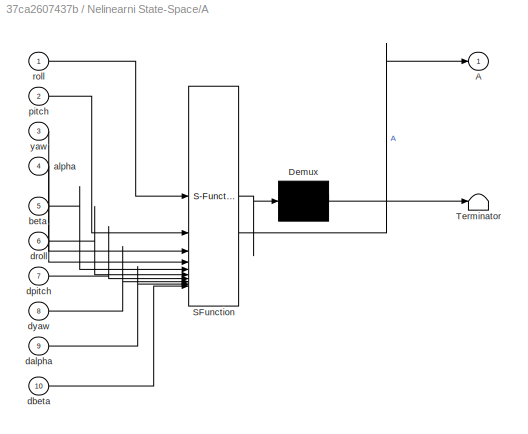
BLOCK [SubSystem] Nelinearni State-Space/A
  ErrorFcn = Stateflow.Translate.translate
  PermitHierarchicalResolution = ExplicitOnly
  SFBlockType = MATLAB Function
  TreatAsAtomicUnit = on
BLOCK [Demux] Nelinearni State-Space/A/ Demux 
  Outputs = 1
BLOCK [S-Function] Nelinearni State-Space/A/ SFunction 
  EnableBusSupport = on
  FunctionName = sf_sfun
  Parameters = Ip,Ixx,Iyy,Izz,M,d,m
  PortCounts = [10 2]
  SFcnIsStateOwnerBlock = off
  SFunctionDeploymentMode = off
  Tag = Stateflow S-Function 3
BLOCK [Terminator] Nelinearni State-Space/A/ Terminator 
BLOCK [Outport] Nelinearni State-Space/A/A
BLOCK [Inport] Nelinearni State-Space/A/alpha
  Port = 4
BLOCK [Inport] Nelinearni State-Space/A/beta
  Port = 5
BLOCK [Inport] Nelinearni State-Space/A/dalpha
  Port = 9
BLOCK [Inport] Nelinearni State-Space/A/dbeta
  Port = 10
BLOCK [Inport] Nelinearni State-Space/A/dpitch
  Port = 7
BLOCK [Inport] Nelinearni State-Space/A/droll
  Port = 6
BLOCK [Inport] Nelinearni State-Space/A/dyaw
  Port = 8
BLOCK [Inport] Nelinearni State-Space/A/pitch
  Port = 2
BLOCK [Inport] Nelinearni State-Space/A/roll
BLOCK [Inport] Nelinearni State-Space/A/yaw
  Port = 3
BLOCK [SubSystem] Nelinearni State-Space/B
  ErrorFcn = Stateflow.Translate.translate
  PermitHierarchicalResolution = ExplicitOnly
  SFBlockType = MATLAB Function
  TreatAsAtomicUnit = on
BLOCK [Demux] Nelinearni State-Space/B/ Demux 
  Outputs = 1
BLOCK [S-Function] Nelinearni State-Space/B/ SFunction 
  EnableBusSupport = on
  FunctionName = sf_sfun
  Parameters = Ip,Ixx,Iyy,Izz,M,d,m
  PortCounts = [5 2]
  SFcnIsStateOwnerBlock = off
  SFunctionDeploymentMode = off
  Tag = Stateflow S-Function 7
BLOCK [Terminator] Nelinearni State-Space/B/ Terminator 
BLOCK [Outport] Nelinearni State-Space/B/B
BLOCK [Inport] Nelinearni State-Space/B/alpha
  Port = 4
BLOCK [Inport] Nelinearni State-Space/B/beta
  Port = 5
BLOCK [Inport] Nelinearni State-Space/B/pitch
  Port = 2
BLOCK [Inport] Nelinearni State-Space/B/roll
BLOCK [Inport] Nelinearni State-Space/B/yaw
  Port = 3
BLOCK [SubSystem] Nelinearni State-Space/BQ
  ErrorFcn = Stateflow.Translate.translate
  PermitHierarchicalResolution = ExplicitOnly
  SFBlockType = MATLAB Function
  TreatAsAtomicUnit = on
BLOCK [Demux] Nelinearni State-Space/BQ/ Demux 
  Outputs = 1
BLOCK [Ground] Nelinearni State-Space/BQ/ Ground 
BLOCK [S-Function] Nelinearni State-Space/BQ/ SFunction 
  EnableBusSupport = on
  FunctionName = sf_sfun
  Parameters = g
  PortCounts = [1 2]
  SFcnIsStateOwnerBlock = off
  SFunctionDeploymentMode = off
  Tag = Stateflow S-Function 8
BLOCK [Terminator] Nelinearni State-Space/BQ/ Terminator 
BLOCK [Outport] Nelinearni State-Space/BQ/BQ
BLOCK [Demux] Nelinearni State-Space/Demux
  Outputs = 16
BLOCK [Demux] Nelinearni State-Space/Demux1
  Outputs = 2
BLOCK [Demux] Nelinearni State-Space/Demux2
  Outputs = 3
BLOCK [Demux] Nelinearni State-Space/Demux3
  Outputs = 3
BLOCK [Demux] Nelinearni State-Space/Demux4
  Outputs = 2
BLOCK [Demux] Nelinearni State-Space/Demux5
  Outputs = 3
BLOCK [Demux] Nelinearni State-Space/Demux6
  Outputs = 2
BLOCK [Integrator] Nelinearni State-Space/Integrator1
  InitialCondition = Xinit_ss
BLOCK [SubSystem] Nelinearni State-Space/MATLAB Function
  Commented = on
  ErrorFcn = Stateflow.Translate.translate
  PermitHierarchicalResolution = ExplicitOnly
  SFBlockType = MATLAB Function
  TreatAsAtomicUnit = on
BLOCK [Demux] Nelinearni State-Space/MATLAB Function/ Demux 
  Outputs = 1
BLOCK [S-Function] Nelinearni State-Space/MATLAB Function/ SFunction 
  EnableBusSupport = on
  FunctionName = sf_sfun
  Parameters = L,b_moment,k_thrust
  PortCounts = [4 2]
  SFcnIsStateOwnerBlock = off
  SFunctionDeploymentMode = off
  Tag = Stateflow S-Function 10
BLOCK [Terminator] Nelinearni State-Space/MATLAB Function/ Terminator 
BLOCK [Inport] Nelinearni State-Space/MATLAB Function/m1
BLOCK [Inport] Nelinearni State-Space/MATLAB Function/m2
  Port = 2
BLOCK [Inport] Nelinearni State-Space/MATLAB Function/m3
  Port = 3
BLOCK [Inport] Nelinearni State-Space/MATLAB Function/m4
  Port = 4
BLOCK [Outport] Nelinearni State-Space/MATLAB Function/u
BLOCK [Product] Nelinearni State-Space/MatrixMultiply
  Multiplication = Matrix(*)
BLOCK [Product] Nelinearni State-Space/MatrixMultiply1
  Multiplication = Matrix(*)
BLOCK [Mux] Nelinearni State-Space/Mux
  DisplayOption = bar
  Inputs = 3
BLOCK [Mux] Nelinearni State-Space/Mux1
  DisplayOption = bar
  Inputs = 3
BLOCK [Mux] Nelinearni State-Space/Mux2
  DisplayOption = bar
  Inputs = 3
BLOCK [Mux] Nelinearni State-Space/Mux3
  DisplayOption = bar
  Inputs = 2
BLOCK [Mux] Nelinearni State-Space/Mux4
  DisplayOption = bar
  Inputs = 2
BLOCK [Mux] Nelinearni State-Space/Mux5
  DisplayOption = bar
BLOCK [Sum] Nelinearni State-Space/Sum
  Inputs = +++
BLOCK [Inport] Nelinearni State-Space/T
BLOCK [Inport] Nelinearni State-Space/Tau_phi
  Port = 2
BLOCK [Inport] Nelinearni State-Space/Tau_psi
  Port = 4
BLOCK [Inport] Nelinearni State-Space/Tau_theta
  Port = 3
BLOCK [Outport] Nelinearni State-Space/[alpha;beta]
  Port = 3
BLOCK [Outport] Nelinearni State-Space/[roll;pitch;yaw]
  Port = 2
BLOCK [Outport] Nelinearni State-Space/[x;y;z]
BLOCK [Scope] Orientace
  Commented = on
  Floating = off
  NumInputPorts = 3
  ScopeSpecificationString = Simulink.scopes.TimeScopeBlockCfg('CurrentConfiguration', extmgr.ConfigurationSet(extmgr.Configuration('Core','General UI',true),extmgr.Configuration('Core','Source UI',true),extmgr.Configuration('Sources','WiredSimulink',true,'DataLoggingVariableName','ScopeData1'),extmgr.Configuration('Visuals','Time Domain',true,'PlotType','Stairs','SerializedDisplays',{struct('MinYLimReal','-17.29315','MaxYLim...<+1882ch>
BLOCK [SubSystem] Post-processing
  Commented = on
BLOCK [Demux] Post-processing/Demux7
BLOCK [Mux] Post-processing/Mux18
  DisplayOption = bar
  Inputs = 2
BLOCK [Mux] Post-processing/Mux19
  DisplayOption = bar
  Inputs = 2
BLOCK [Mux] Post-processing/Mux8
  DisplayOption = bar
  Inputs = 2
BLOCK [Reference] Post-processing/Radians to Degrees  REF=simulink_extras/Transformations/Radians
to Degrees
  SourceBlock = simulink_extras/Transformations/Radians\nto Degrees
  SourceType = RadiansToDegrees
BLOCK [Reference] Post-processing/Radians to Degrees14  REF=simulink_extras/Transformations/Radians
to Degrees
  SourceBlock = simulink_extras/Transformations/Radians\nto Degrees
  SourceType = RadiansToDegrees
BLOCK [Reference] Post-processing/Radians to Degrees15  REF=simulink_extras/Transformations/Radians
to Degrees
  SourceBlock = simulink_extras/Transformations/Radians\nto Degrees
  SourceType = RadiansToDegrees
BLOCK [Reference] Post-processing/Radians to Degrees16  REF=simulink_extras/Transformations/Radians
to Degrees
  SourceBlock = simulink_extras/Transformations/Radians\nto Degrees
  SourceType = RadiansToDegrees
BLOCK [SubSystem] Post-processing/Subsystem4
BLOCK [Demux] Post-processing/Subsystem4/Demux
BLOCK [Inport] Post-processing/Subsystem4/In2
  Port = 4
BLOCK [Mux] Post-processing/Subsystem4/Mux2
  DisplayOption = bar
  Inputs = 2
BLOCK [Mux] Post-processing/Subsystem4/Mux3
  DisplayOption = bar
  Inputs = 2
BLOCK [Mux] Post-processing/Subsystem4/Mux4
  DisplayOption = bar
  Inputs = 2
BLOCK [Outport] Post-processing/Subsystem4/x
BLOCK [Inport] Post-processing/Subsystem4/x(t)
BLOCK [Outport] Post-processing/Subsystem4/y
  Port = 2
BLOCK [Inport] Post-processing/Subsystem4/y(t)
  Port = 2
BLOCK [Outport] Post-processing/Subsystem4/z
  Port = 3
BLOCK [Inport] Post-processing/Subsystem4/z(t)
  Port = 3
BLOCK [Outport] Post-processing/phi
  Port = 4
BLOCK [Inport] Post-processing/phi(t)
  Port = 5
BLOCK [Outport] Post-processing/psi
  Port = 6
BLOCK [Inport] Post-processing/psi(t)
  Port = 7
BLOCK [Inport] Post-processing/ref
  Port = 4
BLOCK [Outport] Post-processing/theta
  Port = 5
BLOCK [Inport] Post-processing/theta(t)
  Port = 6
BLOCK [Outport] Post-processing/x
BLOCK [Inport] Post-processing/x(t)
BLOCK [Outport] Post-processing/y
  Port = 2
BLOCK [Inport] Post-processing/y(t)
  Port = 2
BLOCK [Outport] Post-processing/z
  Port = 3
BLOCK [Inport] Post-processing/z(t)
  Port = 3
BLOCK [SubSystem] Pozorovatel
  Commented = on
BLOCK [SubSystem] Pozorovatel/Ac
  ErrorFcn = Stateflow.Translate.translate
  PermitHierarchicalResolution = ExplicitOnly
  SFBlockType = MATLAB Function
  TreatAsAtomicUnit = on
BLOCK [Demux] Pozorovatel/Ac/ Demux 
  Outputs = 1
BLOCK [Ground] Pozorovatel/Ac/ Ground 
BLOCK [S-Function] Pozorovatel/Ac/ SFunction 
  EnableBusSupport = on
  FunctionName = sf_sfun
  Parameters = Ip,M,d,g,m
  PortCounts = [1 2]
  SFcnIsStateOwnerBlock = off
  SFunctionDeploymentMode = off
  Tag = Stateflow S-Function 11
BLOCK [Terminator] Pozorovatel/Ac/ Terminator 
BLOCK [Outport] Pozorovatel/Ac/Ac
BLOCK [SubSystem] Pozorovatel/Bc
  ErrorFcn = Stateflow.Translate.translate
  PermitHierarchicalResolution = ExplicitOnly
  SFBlockType = MATLAB Function
  TreatAsAtomicUnit = on
BLOCK [Demux] Pozorovatel/Bc/ Demux 
  Outputs = 1
BLOCK [Ground] Pozorovatel/Bc/ Ground 
BLOCK [S-Function] Pozorovatel/Bc/ SFunction 
  EnableBusSupport = on
  FunctionName = sf_sfun
  Parameters = Ixx,Iyy,Izz,M,m
  PortCounts = [1 2]
  SFcnIsStateOwnerBlock = off
  SFunctionDeploymentMode = off
  Tag = Stateflow S-Function 12
BLOCK [Terminator] Pozorovatel/Bc/ Terminator 
BLOCK [Outport] Pozorovatel/Bc/Bc
BLOCK [Demux] Pozorovatel/Demux
  Outputs = 16
BLOCK [Integrator] Pozorovatel/Integrator1
  InitialCondition = Xinit_ss - Xs
BLOCK [Product] Pozorovatel/MatrixMultiply
  Multiplication = Matrix(*)
BLOCK [Product] Pozorovatel/MatrixMultiply1
  Multiplication = Matrix(*)
BLOCK [Mux] Pozorovatel/Mux
  DisplayOption = bar
  Inputs = 3
BLOCK [Mux] Pozorovatel/Mux1
  DisplayOption = bar
  Inputs = 3
BLOCK [Mux] Pozorovatel/Mux2
  DisplayOption = bar
  Inputs = 2
BLOCK [Sum] Pozorovatel/Sum
  Inputs = +++
BLOCK [Outport] Pozorovatel/[dalpha;dbeta]
  Port = 3
BLOCK [Outport] Pozorovatel/[droll;dpitch;dyaw]
  Port = 2
BLOCK [Outport] Pozorovatel/[dx;dy;dz]
BLOCK [Outport] Pozorovatel/dX_odhad
  Port = 4
BLOCK [Inport] Pozorovatel/du
  Port = 2
BLOCK [Inport] Pozorovatel/korekce
BLOCK [Constant] Psi desired
  Commented = on
  Value = 0
BLOCK [Reference] Radians to Degrees1  REF=simulink_extras/Transformations/Radians
to Degrees
  Commented = on
  SourceBlock = simulink_extras/Transformations/Radians\nto Degrees
  SourceType = RadiansToDegrees
BLOCK [Reference] Radians to Degrees10  REF=simulink_extras/Transformations/Radians
to Degrees
  SourceBlock = simulink_extras/Transformations/Radians\nto Degrees
  SourceType = RadiansToDegrees
BLOCK [Reference] Radians to Degrees11  REF=simulink_extras/Transformations/Radians
to Degrees
  SourceBlock = simulink_extras/Transformations/Radians\nto Degrees
  SourceType = RadiansToDegrees
BLOCK [Reference] Radians to Degrees12  REF=simulink_extras/Transformations/Radians
to Degrees
  SourceBlock = simulink_extras/Transformations/Radians\nto Degrees
  SourceType = RadiansToDegrees
BLOCK [Reference] Radians to Degrees17  REF=simulink_extras/Transformations/Radians
to Degrees
  Commented = on
  SourceBlock = simulink_extras/Transformations/Radians\nto Degrees
  SourceType = RadiansToDegrees
BLOCK [Reference] Radians to Degrees2  REF=simulink_extras/Transformations/Radians
to Degrees
  Commented = on
  SourceBlock = simulink_extras/Transformations/Radians\nto Degrees
  SourceType = RadiansToDegrees
BLOCK [Reference] Radians to Degrees3  REF=simulink_extras/Transformations/Radians
to Degrees
  Commented = on
  SourceBlock = simulink_extras/Transformations/Radians\nto Degrees
  SourceType = RadiansToDegrees
BLOCK [Reference] Radians to Degrees4  REF=simulink_extras/Transformations/Radians
to Degrees
  Commented = on
  SourceBlock = simulink_extras/Transformations/Radians\nto Degrees
  SourceType = RadiansToDegrees
BLOCK [Reference] Radians to Degrees5  REF=simulink_extras/Transformations/Radians
to Degrees
  SourceBlock = simulink_extras/Transformations/Radians\nto Degrees
  SourceType = RadiansToDegrees
BLOCK [Reference] Radians to Degrees6  REF=simulink_extras/Transformations/Radians
to Degrees
  SourceBlock = simulink_extras/Transformations/Radians\nto Degrees
  SourceType = RadiansToDegrees
BLOCK [Reference] Radians to Degrees7  REF=simulink_extras/Transformations/Radians
to Degrees
  SourceBlock = simulink_extras/Transformations/Radians\nto Degrees
  SourceType = RadiansToDegrees
BLOCK [Reference] Radians to Degrees8  REF=simulink_extras/Transformations/Radians
to Degrees
  SourceBlock = simulink_extras/Transformations/Radians\nto Degrees
  SourceType = RadiansToDegrees
BLOCK [Reference] Radians to Degrees9  REF=simulink_extras/Transformations/Radians
to Degrees
  SourceBlock = simulink_extras/Transformations/Radians\nto Degrees
  SourceType = RadiansToDegrees
BLOCK [Saturate] Saturation
  Commented = on
  LowerLimit = 0
  UpperLimit = 1976^2
BLOCK [Scope] Scope
  Floating = off
  NumInputPorts = 1
  ScopeSpecificationString = Simulink.scopes.TimeScopeBlockCfg('CurrentConfiguration', extmgr.ConfigurationSet(extmgr.Configuration('Core','General UI',true),extmgr.Configuration('Core','Source UI',true),extmgr.Configuration('Sources','WiredSimulink',true,'DataLoggingVariableName','ScopeData1'),extmgr.Configuration('Visuals','Time Domain',true,'SerializedDisplays',{struct('MinYLimReal','-0.00793','MaxYLimReal','0.00615','YLab...<+1595ch>
BLOCK [Scope] Scope1
  Floating = off
  NumInputPorts = 2
  ScopeSpecificationString = Simulink.scopes.TimeScopeBlockCfg('CurrentConfiguration', extmgr.ConfigurationSet(extmgr.Configuration('Core','General UI',true),extmgr.Configuration('Core','Source UI',true),extmgr.Configuration('Sources','WiredSimulink',true,'DataLoggingVariableName','ScopeData2'),extmgr.Configuration('Visuals','Time Domain',true,'SerializedDisplays',{struct('MinYLimReal','-8.52831','MaxYLimReal','146.20866','YL...<+2286ch>
BLOCK [Scope] Scope10
  Commented = on
  Floating = off
  NumInputPorts = 1
  ScopeSpecificationString = Simulink.scopes.TimeScopeBlockCfg('CurrentConfiguration', extmgr.ConfigurationSet(extmgr.Configuration('Core','General UI',true,'FigureColor',[1 1 1]),extmgr.Configuration('Core','Source UI',true),extmgr.Configuration('Sources','WiredSimulink',true,'DataLoggingVariableName','ScopeData1'),extmgr.Configuration('Visuals','Time Domain',true,'SerializedDisplays',{struct('MinYLimReal','-10.68548','MaxYL...<+1930ch>
BLOCK [Scope] Scope11
  Floating = off
  NumInputPorts = 2
  ScopeSpecificationString = Simulink.scopes.TimeScopeBlockCfg('CurrentConfiguration', extmgr.ConfigurationSet(extmgr.Configuration('Core','General UI',true),extmgr.Configuration('Core','Source UI',true),extmgr.Configuration('Sources','WiredSimulink',true,'DataLoggingVariableName','ScopeData3'),extmgr.Configuration('Visuals','Time Domain',true,'SerializedDisplays',{struct('MinYLimReal','-5.00585','MaxYLimReal','45.00065','YLa...<+1694ch>
BLOCK [Scope] Scope12
  Commented = on
  Floating = off
  NumInputPorts = 2
  ScopeSpecificationString = Simulink.scopes.TimeScopeBlockCfg('CurrentConfiguration', extmgr.ConfigurationSet(extmgr.Configuration('Core','General UI',true),extmgr.Configuration('Core','Source UI',true),extmgr.Configuration('Sources','WiredSimulink',true,'DataLoggingVariableName','ScopeData4'),extmgr.Configuration('Visuals','Time Domain',true,'SerializedDisplays',{struct('MinYLimReal','-0.60219','MaxYLimReal','3.39873','YLab...<+1737ch>
BLOCK [Scope] Scope13
  Floating = off
  NumInputPorts = 1
  ScopeSpecificationString = Simulink.scopes.TimeScopeBlockCfg('CurrentConfiguration', extmgr.ConfigurationSet(extmgr.Configuration('Core','General UI',true,'FigureColor',[1 1 1]),extmgr.Configuration('Core','Source UI',true),extmgr.Configuration('Sources','WiredSimulink',true,'DataLoggingVariableName','ScopeData5'),extmgr.Configuration('Visuals','Time Domain',true,'SerializedDisplays',{struct('MinYLimReal','-0.37528','MaxYLi...<+1891ch>
BLOCK [Scope] Scope14
  Floating = off
  NumInputPorts = 1
  ScopeSpecificationString = Simulink.scopes.TimeScopeBlockCfg('CurrentConfiguration', extmgr.ConfigurationSet(extmgr.Configuration('Core','General UI',true),extmgr.Configuration('Core','Source UI',true),extmgr.Configuration('Sources','WiredSimulink',true,'DataLoggingVariableName','ScopeData1'),extmgr.Configuration('Visuals','Time Domain',true,'SerializedDisplays',{struct('MinYLimReal','-0.0364','MaxYLimReal','0.04355','YLabe...<+1668ch>
BLOCK [Scope] Scope15
  Floating = off
  NumInputPorts = 1
  ScopeSpecificationString = Simulink.scopes.TimeScopeBlockCfg('CurrentConfiguration', extmgr.ConfigurationSet(extmgr.Configuration('Core','General UI',true,'FigureColor',[1 1 1]),extmgr.Configuration('Core','Source UI',true),extmgr.Configuration('Sources','WiredSimulink',true,'DataLoggingVariableName','ScopeData2'),extmgr.Configuration('Visuals','Time Domain',true,'SerializedDisplays',{struct('MinYLimReal','-22.63369','MaxYL...<+1895ch>
BLOCK [Scope] Scope16
  Floating = off
  NumInputPorts = 2
  ScopeSpecificationString = Simulink.scopes.TimeScopeBlockCfg('CurrentConfiguration', extmgr.ConfigurationSet(extmgr.Configuration('Core','General UI',true),extmgr.Configuration('Core','Source UI',true),extmgr.Configuration('Sources','WiredSimulink',true,'DataLoggingVariableName','ScopeData8'),extmgr.Configuration('Visuals','Time Domain',true,'SerializedDisplays',{struct('MinYLimReal','-26.62912','MaxYLimReal','21.10784','YL...<+1711ch>
BLOCK [Scope] Scope17
  Floating = off
  NumInputPorts = 1
  ScopeSpecificationString = Simulink.scopes.TimeScopeBlockCfg('CurrentConfiguration', extmgr.ConfigurationSet(extmgr.Configuration('Core','General UI',true,'FigureColor',[1 1 1]),extmgr.Configuration('Core','Source UI',true),extmgr.Configuration('Sources','WiredSimulink',true,'DataLoggingVariableName','ScopeData1'),extmgr.Configuration('Visuals','Time Domain',true,'SerializedDisplays',{struct('MinYLimReal','-0.40519','MaxYLi...<+1924ch>
BLOCK [Scope] Scope18
  Floating = off
  NumInputPorts = 2
  ScopeSpecificationString = Simulink.scopes.TimeScopeBlockCfg('CurrentConfiguration', extmgr.ConfigurationSet(extmgr.Configuration('Core','General UI',true),extmgr.Configuration('Core','Source UI',true),extmgr.Configuration('Sources','WiredSimulink',true,'DataLoggingVariableName','ScopeData10'),extmgr.Configuration('Visuals','Time Domain',true,'SerializedDisplays',{struct('MinYLimReal','-0.000000000000000043','MaxYLimReal','...<+1854ch>
BLOCK [Scope] Scope19
  Commented = on
  Floating = off
  NumInputPorts = 1
  ScopeSpecificationString = Simulink.scopes.TimeScopeBlockCfg('CurrentConfiguration', extmgr.ConfigurationSet(extmgr.Configuration('Core','General UI',true),extmgr.Configuration('Core','Source UI',true),extmgr.Configuration('Sources','WiredSimulink',true,'DataLoggingVariableName','ScopeData5'),extmgr.Configuration('Visuals','Time Domain',true,'SerializedDisplays',{struct('MinYLimReal','-19.3418','MaxYLimReal','163.53823','YL...<+1703ch>
BLOCK [Scope] Scope2
  Floating = off
  NumInputPorts = 1
  ScopeSpecificationString = Simulink.scopes.TimeScopeBlockCfg('CurrentConfiguration', extmgr.ConfigurationSet(extmgr.Configuration('Core','General UI',true),extmgr.Configuration('Core','Source UI',true),extmgr.Configuration('Sources','WiredSimulink',true,'DataLoggingVariableName','ScopeData3'),extmgr.Configuration('Visuals','Time Domain',true,'SerializedDisplays',{struct('MinYLimReal','103.55398','MaxYLimReal','2121.78919','...<+1665ch>
BLOCK [Scope] Scope20
  Commented = on
  Floating = off
  NumInputPorts = 1
  ScopeSpecificationString = Simulink.scopes.TimeScopeBlockCfg('CurrentConfiguration', extmgr.ConfigurationSet(extmgr.Configuration('Core','General UI',true),extmgr.Configuration('Core','Source UI',true),extmgr.Configuration('Sources','WiredSimulink',true,'DataLoggingVariableName','ScopeData6'),extmgr.Configuration('Visuals','Time Domain',true,'SerializedDisplays',{struct('MinYLimReal','-98891.12903','MaxYLimReal','890020.161...<+1574ch>
BLOCK [Scope] Scope21
  Floating = off
  NumInputPorts = 1
  ScopeSpecificationString = Simulink.scopes.TimeScopeBlockCfg('CurrentConfiguration', extmgr.ConfigurationSet(extmgr.Configuration('Core','General UI',true),extmgr.Configuration('Core','Source UI',true),extmgr.Configuration('Sources','WiredSimulink',true,'DataLoggingVariableName','ScopeData2'),extmgr.Configuration('Visuals','Time Domain',true,'SerializedDisplays',{struct('MinYLimReal','-23.38419','MaxYLimReal','2.62814','YLa...<+1562ch>
BLOCK [Scope] Scope22
  Floating = off
  NumInputPorts = 1
  ScopeSpecificationString = Simulink.scopes.TimeScopeBlockCfg('CurrentConfiguration', extmgr.ConfigurationSet(extmgr.Configuration('Core','General UI',true),extmgr.Configuration('Core','Source UI',true),extmgr.Configuration('Sources','WiredSimulink',true,'DataLoggingVariableName','ScopeData1'),extmgr.Configuration('Visuals','Time Domain',true,'SerializedDisplays',{struct('MinYLimReal','-1.21227','MaxYLimReal','0.9104','YLabe...<+1533ch>
BLOCK [Scope] Scope24
  Floating = off
  NumInputPorts = 2
  ScopeSpecificationString = Simulink.scopes.TimeScopeBlockCfg('CurrentConfiguration', extmgr.ConfigurationSet(extmgr.Configuration('Core','General UI',true),extmgr.Configuration('Core','Source UI',true),extmgr.Configuration('Sources','WiredSimulink',true,'DataLoggingVariableName','ScopeData2'),extmgr.Configuration('Visuals','Time Domain',true,'SerializedDisplays',{struct('MinYLimReal','-17.77602','MaxYLimReal','157.89458','Y...<+2284ch>
BLOCK [Scope] Scope25
  Floating = off
  NumInputPorts = 2
  ScopeSpecificationString = Simulink.scopes.TimeScopeBlockCfg('CurrentConfiguration', extmgr.ConfigurationSet(extmgr.Configuration('Core','General UI',true),extmgr.Configuration('Core','Source UI',true),extmgr.Configuration('Sources','WiredSimulink',true,'DataLoggingVariableName','ScopeData3'),extmgr.Configuration('Visuals','Time Domain',true,'SerializedDisplays',{struct('MinYLimReal','-13.53378','MaxYLimReal','12.3455','YLa...<+1831ch>
BLOCK [Scope] Scope26
  Floating = off
  NumInputPorts = 1
  ScopeSpecificationString = Simulink.scopes.TimeScopeBlockCfg('CurrentConfiguration', extmgr.ConfigurationSet(extmgr.Configuration('Core','General UI',true,'FigureColor',[1 1 1]),extmgr.Configuration('Core','Source UI',true),extmgr.Configuration('Sources','WiredSimulink',true,'DataLoggingVariableName','ScopeData4'),extmgr.Configuration('Visuals','Time Domain',true,'SerializedDisplays',{struct('MinYLimReal','-0.38071','MaxYLi...<+1891ch>
BLOCK [Scope] Scope27
  Commented = on
  Floating = off
  NumInputPorts = 1
  ScopeSpecificationString = Simulink.scopes.TimeScopeBlockCfg('CurrentConfiguration', extmgr.ConfigurationSet(extmgr.Configuration('Core','General UI',true),extmgr.Configuration('Core','Source UI',true),extmgr.Configuration('Sources','WiredSimulink',true,'DataLoggingVariableName','ScopeData5'),extmgr.Configuration('Visuals','Time Domain',true,'SerializedDisplays',{struct('MinYLimReal','103.55398','MaxYLimReal','2121.78919','...<+1576ch>
BLOCK [Scope] Scope28
  Floating = off
  NumInputPorts = 1
  ScopeSpecificationString = Simulink.scopes.TimeScopeBlockCfg('CurrentConfiguration', extmgr.ConfigurationSet(extmgr.Configuration('Core','General UI',true),extmgr.Configuration('Core','Source UI',true),extmgr.Configuration('Sources','WiredSimulink',true,'DataLoggingVariableName','ScopeData5'),extmgr.Configuration('Visuals','Time Domain',true,'SerializedDisplays',{struct('MinYLimReal','-0.0364','MaxYLimReal','0.04355','YLabe...<+1668ch>
BLOCK [Scope] Scope29
  Floating = off
  NumInputPorts = 1
  ScopeSpecificationString = Simulink.scopes.TimeScopeBlockCfg('CurrentConfiguration', extmgr.ConfigurationSet(extmgr.Configuration('Core','General UI',true,'FigureColor',[1 1 1]),extmgr.Configuration('Core','Source UI',true),extmgr.Configuration('Sources','WiredSimulink',true,'DataLoggingVariableName','ScopeData6'),extmgr.Configuration('Visuals','Time Domain',true,'SerializedDisplays',{struct('MinYLimReal','-53.4133','MaxYLi...<+1891ch>
BLOCK [Scope] Scope3
  Commented = on
  Floating = off
  NumInputPorts = 1
  ScopeSpecificationString = Simulink.scopes.TimeScopeBlockCfg('CurrentConfiguration', extmgr.ConfigurationSet(extmgr.Configuration('Core','General UI',true),extmgr.Configuration('Core','Source UI',true),extmgr.Configuration('Sources','WiredSimulink',true,'DataLoggingVariableName','ScopeData7'),extmgr.Configuration('Visuals','Time Domain',true,'SerializedDisplays',{struct('MinYLimReal','-150.12838','MaxYLimReal','1351.15543',...<+1661ch>
BLOCK [Scope] Scope30
  Commented = on
  Floating = off
  NumInputPorts = 1
  ScopeSpecificationString = Simulink.scopes.TimeScopeBlockCfg('CurrentConfiguration', extmgr.ConfigurationSet(extmgr.Configuration('Core','General UI',true),extmgr.Configuration('Core','Source UI',true),extmgr.Configuration('Sources','WiredSimulink',true,'DataLoggingVariableName','ScopeData6'),extmgr.Configuration('Visuals','Time Domain',true,'SerializedDisplays',{struct('MinYLimReal','7939.33189','MaxYLimReal','9984.01729',...<+1584ch>
BLOCK [Scope] Scope31
  Floating = off
  NumInputPorts = 2
  ScopeSpecificationString = Simulink.scopes.TimeScopeBlockCfg('CurrentConfiguration', extmgr.ConfigurationSet(extmgr.Configuration('Core','General UI',true),extmgr.Configuration('Core','Source UI',true),extmgr.Configuration('Sources','WiredSimulink',true,'DataLoggingVariableName','ScopeData7'),extmgr.Configuration('Visuals','Time Domain',true,'SerializedDisplays',{struct('MinYLimReal','-26.62912','MaxYLimReal','21.10784','YL...<+1620ch>
BLOCK [Scope] Scope32
  Floating = off
  NumInputPorts = 1
  ScopeSpecificationString = Simulink.scopes.TimeScopeBlockCfg('CurrentConfiguration', extmgr.ConfigurationSet(extmgr.Configuration('Core','General UI',true,'FigureColor',[1 1 1]),extmgr.Configuration('Core','Source UI',true),extmgr.Configuration('Sources','WiredSimulink',true,'DataLoggingVariableName','ScopeData8'),extmgr.Configuration('Visuals','Time Domain',true,'SerializedDisplays',{struct('MinYLimReal','-0.40519','MaxYLi...<+1949ch>
BLOCK [Scope] Scope33
  Commented = on
  Floating = off
  NumInputPorts = 2
  ScopeSpecificationString = Simulink.scopes.TimeScopeBlockCfg('CurrentConfiguration', extmgr.ConfigurationSet(extmgr.Configuration('Core','General UI',true),extmgr.Configuration('Core','Source UI',true),extmgr.Configuration('Sources','WiredSimulink',true,'DataLoggingVariableName','ScopeData4'),extmgr.Configuration('Visuals','Time Domain',true,'SerializedDisplays',{struct('MinYLimReal','-8.52831','MaxYLimReal','146.20866','YL...<+2286ch>
BLOCK [Scope] Scope34
  Floating = off
  NumInputPorts = 2
  ScopeSpecificationString = Simulink.scopes.TimeScopeBlockCfg('CurrentConfiguration', extmgr.ConfigurationSet(extmgr.Configuration('Core','General UI',true),extmgr.Configuration('Core','Source UI',true),extmgr.Configuration('Sources','WiredSimulink',true,'DataLoggingVariableName','ScopeData9'),extmgr.Configuration('Visuals','Time Domain',true,'SerializedDisplays',{struct('MinYLimReal','-0.10923','MaxYLimReal','3.07521','YLab...<+1743ch>
BLOCK [Scope] Scope35
  Floating = off
  NumInputPorts = 1
  ScopeSpecificationString = Simulink.scopes.TimeScopeBlockCfg('CurrentConfiguration', extmgr.ConfigurationSet(extmgr.Configuration('Core','General UI',true),extmgr.Configuration('Core','Source UI',true),extmgr.Configuration('Sources','WiredSimulink',true,'DataLoggingVariableName','ScopeData10'),extmgr.Configuration('Visuals','Time Domain',true,'SerializedDisplays',{struct('MinYLimReal','889.454345235342','MaxYLimReal','889.4...<+1718ch>
BLOCK [Scope] Scope36
  Floating = off
  NumInputPorts = 1
  ScopeSpecificationString = Simulink.scopes.TimeScopeBlockCfg('CurrentConfiguration', extmgr.ConfigurationSet(extmgr.Configuration('Core','General UI',true),extmgr.Configuration('Core','Source UI',true),extmgr.Configuration('Sources','WiredSimulink',true,'DataLoggingVariableName','ScopeData11'),extmgr.Configuration('Visuals','Time Domain',true,'SerializedDisplays',{struct('MinYLimReal','-23.38419','MaxYLimReal','2.62814','YL...<+1563ch>
BLOCK [Scope] Scope38
  Floating = off
  NumInputPorts = 1
  ScopeSpecificationString = Simulink.scopes.TimeScopeBlockCfg('CurrentConfiguration', extmgr.ConfigurationSet(extmgr.Configuration('Core','General UI',true),extmgr.Configuration('Core','Source UI',true),extmgr.Configuration('Sources','WiredSimulink',true,'DataLoggingVariableName','ScopeData13'),extmgr.Configuration('Visuals','Time Domain',true,'SerializedDisplays',{struct('MinYLimReal','-83.41843','MaxYLimReal','749.40039','...<+1551ch>
BLOCK [Scope] Scope4
  Commented = on
  Floating = off
  NumInputPorts = 2
  ScopeSpecificationString = Simulink.scopes.TimeScopeBlockCfg('CurrentConfiguration', extmgr.ConfigurationSet(extmgr.Configuration('Core','General UI',true),extmgr.Configuration('Core','Source UI',true),extmgr.Configuration('Sources','WiredSimulink',true,'DataLoggingVariableName','ScopeData8'),extmgr.Configuration('Visuals','Time Domain',true,'SerializedDisplays',{struct('MinYLimReal','-2.04104','MaxYLimReal','2.51217','YLab...<+1808ch>
BLOCK [Scope] Scope5
  Commented = on
  Floating = off
  NumInputPorts = 1
  ScopeSpecificationString = Simulink.scopes.TimeScopeBlockCfg('CurrentConfiguration', extmgr.ConfigurationSet(extmgr.Configuration('Core','General UI',true,'FigureColor',[1 1 1]),extmgr.Configuration('Core','Source UI',true),extmgr.Configuration('Sources','WiredSimulink',true,'DataLoggingVariableName','ScopeData9'),extmgr.Configuration('Visuals','Time Domain',true,'SerializedDisplays',{struct('MinYLimReal','-2.25006','MaxYLi...<+1860ch>
BLOCK [Scope] Scope6
  Commented = on
  Floating = off
  NumInputPorts = 1
  ScopeSpecificationString = Simulink.scopes.TimeScopeBlockCfg('CurrentConfiguration', extmgr.ConfigurationSet(extmgr.Configuration('Core','General UI',true),extmgr.Configuration('Core','Source UI',true),extmgr.Configuration('Sources','WiredSimulink',true,'DataLoggingVariableName','ScopeData10'),extmgr.Configuration('Visuals','Time Domain',true,'SerializedDisplays',{struct('MinYLimReal','-3.5194','MaxYLimReal','4.6009','YLabe...<+1681ch>
BLOCK [Scope] Scope7
  Floating = off
  NumInputPorts = 1
  ScopeSpecificationString = Simulink.scopes.TimeScopeBlockCfg('CurrentConfiguration', extmgr.ConfigurationSet(extmgr.Configuration('Core','General UI',true),extmgr.Configuration('Core','Source UI',true),extmgr.Configuration('Sources','WiredSimulink',true,'DataLoggingVariableName','ScopeData13'),extmgr.Configuration('Visuals','Time Domain',true,'SerializedDisplays',{struct('MinYLimReal','-482.66657','MaxYLimReal','243.20366',...<+1555ch>
BLOCK [Scope] Scope8
  Commented = on
  Floating = off
  NumInputPorts = 1
  ScopeSpecificationString = Simulink.scopes.TimeScopeBlockCfg('CurrentConfiguration', extmgr.ConfigurationSet(extmgr.Configuration('Core','General UI',true,'FigureColor',[1 1 1]),extmgr.Configuration('Core','Source UI',true),extmgr.Configuration('Sources','WiredSimulink',true,'DataLoggingVariableName','ScopeData11'),extmgr.Configuration('Visuals','Time Domain',true,'SerializedDisplays',{struct('MinYLimReal','-0.02334','MaxYL...<+1871ch>
BLOCK [Scope] Scope9
  Commented = on
  Floating = off
  NumInputPorts = 2
  ScopeSpecificationString = Simulink.scopes.TimeScopeBlockCfg('CurrentConfiguration', extmgr.ConfigurationSet(extmgr.Configuration('Core','General UI',true),extmgr.Configuration('Core','Source UI',true),extmgr.Configuration('Sources','WiredSimulink',true,'DataLoggingVariableName','ScopeData12'),extmgr.Configuration('Visuals','Time Domain',true,'SerializedDisplays',{struct('MinYLimReal','-3.21985','MaxYLimReal','2.22648','YLa...<+1598ch>
BLOCK [SubSystem] Sily na (rad//s)^1
  ErrorFcn = Stateflow.Translate.translate
  PermitHierarchicalResolution = ExplicitOnly
  SFBlockType = MATLAB Function
  TreatAsAtomicUnit = on
BLOCK [Demux] Sily na (rad//s)^1/ Demux 
  Outputs = 1
BLOCK [S-Function] Sily na (rad//s)^1/ SFunction 
  EnableBusSupport = on
  FunctionName = sf_sfun
  Parameters = b_moment,k_thrust,l
  PortCounts = [1 5]
  SFcnIsStateOwnerBlock = off
  SFunctionDeploymentMode = off
  Tag = Stateflow S-Function 30
BLOCK [Terminator] Sily na (rad//s)^1/ Terminator 
BLOCK [Outport] Sily na (rad//s)^1/m1
BLOCK [Outport] Sily na (rad//s)^1/m2
  Port = 2
BLOCK [Outport] Sily na (rad//s)^1/m3
  Port = 3
BLOCK [Outport] Sily na (rad//s)^1/m4
  Port = 4
BLOCK [Inport] Sily na (rad//s)^1/u
BLOCK [SubSystem] Sily na (rad//s)^2
  ErrorFcn = Stateflow.Translate.translate
  PermitHierarchicalResolution = ExplicitOnly
  SFBlockType = MATLAB Function
  TreatAsAtomicUnit = on
BLOCK [Demux] Sily na (rad//s)^2/ Demux 
  Outputs = 1
BLOCK [S-Function] Sily na (rad//s)^2/ SFunction 
  EnableBusSupport = on
  FunctionName = sf_sfun
  Parameters = b_moment,k_thrust,l
  PortCounts = [1 5]
  SFcnIsStateOwnerBlock = off
  SFunctionDeploymentMode = off
  Tag = Stateflow S-Function 1
BLOCK [Terminator] Sily na (rad//s)^2/ Terminator 
BLOCK [Outport] Sily na (rad//s)^2/m1
BLOCK [Outport] Sily na (rad//s)^2/m2
  Port = 2
BLOCK [Outport] Sily na (rad//s)^2/m3
  Port = 3
BLOCK [Outport] Sily na (rad//s)^2/m4
  Port = 4
BLOCK [Inport] Sily na (rad//s)^2/u
BLOCK [Sqrt] Sqrt
  Commented = on
BLOCK [Sqrt] Sqrt1
BLOCK [Sqrt] Sqrt2
BLOCK [Sqrt] Sqrt3
  Commented = on
BLOCK [Stop] Stop Simulation1
BLOCK [Stop] Stop Simulation2
  Commented = on
BLOCK [Stop] Stop Simulation3
BLOCK [Sum] Sum
  Inputs = -+|
BLOCK [Sum] Sum1
  Commented = on
  Inputs = +-|
BLOCK [Sum] Sum10
  Commented = on
  Inputs = |-+
BLOCK [Sum] Sum11
  Commented = on
  Inputs = |-+
BLOCK [Sum] Sum12
  Inputs = ++|
BLOCK [Sum] Sum13
  Inputs = |+-
BLOCK [Sum] Sum14
  Inputs = +-|
BLOCK [Sum] Sum15
  Inputs = |++
BLOCK [Sum] Sum16
  Inputs = +|-
BLOCK [Sum] Sum17
  Inputs = +-|
BLOCK [Sum] Sum18
  Inputs = |++
BLOCK [Sum] Sum19
  Inputs = |+-
BLOCK [Sum] Sum2
  Inputs = +-|
BLOCK [Sum] Sum20
  Inputs = |+-
BLOCK [Sum] Sum21
  Inputs = -+|
BLOCK [Sum] Sum22
  Inputs = -+|
BLOCK [Sum] Sum23
  Commented = on
  Inputs = ++|
BLOCK [Sum] Sum24
  Commented = on
  Inputs = |+-
BLOCK [Sum] Sum25
  Commented = on
  Inputs = -+|
  NameLocation = left
BLOCK [Sum] Sum26
  Commented = on
  Inputs = -+|
  NameLocation = left
BLOCK [Sum] Sum3
  Inputs = |++
BLOCK [Sum] Sum4
  Inputs = +|-
BLOCK [Sum] Sum5
  Commented = on
  Inputs = |++
BLOCK [Sum] Sum6
  Commented = on
  Inputs = +|-
BLOCK [Sum] Sum7
  Commented = on
  Inputs = |+-
BLOCK [Sum] Sum8
  Commented = on
  Inputs = |++
BLOCK [Sum] Sum9
  Inputs = +-|
BLOCK [ToWorkspace] To Workspace
  FixptAsFi = on
  MaxDataPoints = inf
  SampleTime = -1
  SaveFormat = Timeseries
  VariableName = dron_pos
BLOCK [ToWorkspace] To Workspace1
  FixptAsFi = on
  MaxDataPoints = inf
  SampleTime = -1
  SaveFormat = Timeseries
  VariableName = dron_angles
BLOCK [ToWorkspace] To Workspace2
  FixptAsFi = on
  MaxDataPoints = inf
  SampleTime = -1
  SaveFormat = Timeseries
  VariableName = pend_angles
BLOCK [ToWorkspace] To Workspace3
  FixptAsFi = on
  MaxDataPoints = inf
  SampleTime = -1
  SaveFormat = Timeseries
  VariableName = inputs
BLOCK [ToWorkspace] To Workspace4
  FixptAsFi = on
  MaxDataPoints = inf
  SampleTime = -1
  SaveFormat = Timeseries
  VariableName = ref
BLOCK [Scope] Uhly zavazi
  Commented = on
  Floating = off
  NumInputPorts = 1
  ScopeSpecificationString = Simulink.scopes.TimeScopeBlockCfg('CurrentConfiguration', extmgr.ConfigurationSet(extmgr.Configuration('Core','General UI',true),extmgr.Configuration('Core','Source UI',true),extmgr.Configuration('Sources','WiredSimulink',true,'DataLoggingVariableName','ScopeData1'),extmgr.Configuration('Visuals','Time Domain',true,'PlotType','Stairs','SerializedDisplays',{struct('MinYLimReal','-26.62805','MaxYLim...<+1800ch>
BLOCK [Constant] X desired
  Commented = on
BLOCK [Scope] XYZ
  Commented = on
  Floating = off
  NumInputPorts = 3
  ScopeSpecificationString = Simulink.scopes.TimeScopeBlockCfg('CurrentConfiguration', extmgr.ConfigurationSet(extmgr.Configuration('Core','General UI',true,'FigureColor',[0 0 0]),extmgr.Configuration('Core','Source UI',true),extmgr.Configuration('Sources','WiredSimulink',true,'DataLoggingVariableName','ScopeData3'),extmgr.Configuration('Visuals','Time Domain',true,'PlotType','Stairs','SerializedDisplays',{struct('MinYLimReal...<+2306ch>
BLOCK [Constant] Y desired
  Commented = on
  Value = 2
BLOCK [Constant] Z desired
  Commented = on
  Value = 3
BLOCK [SubSystem] [-pi; pi] norm
  Commented = on
BLOCK [Sum] [-pi; pi] norm/Add
  IconShape = rectangular
BLOCK [Sum] [-pi; pi] norm/Add1
  IconShape = rectangular
  Inputs = +-
BLOCK [Constant] [-pi; pi] norm/Constant
  Value = pi
BLOCK [Constant] [-pi; pi] norm/Constant1
  Value = 2*pi
BLOCK [Math] [-pi; pi] norm/Mod
  Operator = mod
BLOCK [Inport] [-pi; pi] norm/e
BLOCK [Outport] [-pi; pi] norm/e_norm
BLOCK [SubSystem] [-pi; pi] norm_
BLOCK [Sum] [-pi; pi] norm_/Add
  IconShape = rectangular
BLOCK [Sum] [-pi; pi] norm_/Add1
  IconShape = rectangular
  Inputs = +-
BLOCK [Constant] [-pi; pi] norm_/Constant
  Value = pi
BLOCK [Constant] [-pi; pi] norm_/Constant1
  Value = 2*pi
BLOCK [Math] [-pi; pi] norm_/Mod
  Operator = mod
BLOCK [Inport] [-pi; pi] norm_/e
BLOCK [Outport] [-pi; pi] norm_/e_norm
BLOCK [SubSystem] [-pi; pi] norm_1
BLOCK [Sum] [-pi; pi] norm_1/Add
  IconShape = rectangular
BLOCK [Sum] [-pi; pi] norm_1/Add1
  IconShape = rectangular
  Inputs = +-
BLOCK [Constant] [-pi; pi] norm_1/Constant
  Value = pi
BLOCK [Constant] [-pi; pi] norm_1/Constant1
  Value = 2*pi
BLOCK [Math] [-pi; pi] norm_1/Mod
  Operator = mod
BLOCK [Inport] [-pi; pi] norm_1/e
BLOCK [Outport] [-pi; pi] norm_1/e_norm
BLOCK [SubSystem] u na (rad//s)^2
  Commented = on
  ErrorFcn = Stateflow.Translate.translate
  PermitHierarchicalResolution = ExplicitOnly
  SFBlockType = MATLAB Function
  TreatAsAtomicUnit = on
BLOCK [Demux] u na (rad//s)^2/ Demux 
  Outputs = 1
BLOCK [S-Function] u na (rad//s)^2/ SFunction 
  EnableBusSupport = on
  FunctionName = sf_sfun
  Parameters = b_moment,k_thrust,l
  PortCounts = [1 2]
  SFcnIsStateOwnerBlock = off
  SFunctionDeploymentMode = off
  Tag = Stateflow S-Function 13
BLOCK [Terminator] u na (rad//s)^2/ Terminator 
BLOCK [Inport] u na (rad//s)^2/u
BLOCK [Outport] u na (rad//s)^2/wi
ANNOTATION (root): P.S. После всех исправлений коэфициентов и перепроверок, обе модели имеют одинаковую динамику (теоретически так и должно быть), есть мизерные отличия, но в целом отклики почти одинаковые. -Большим минусом это что нет сатурации и antiwind-up какого-то; может быть проблемой в MuJoCo.
ANNOTATION (root): Navrch koeficientu pomoci Pole Placement
ANNOTATION (root): Измененная схема для картинки в дипломе (управлеющие входы это сила и моменты )
ANNOTATION (root): Model kde vstupy jsou (rad/s)^2
ANNOTATION (root): Model kde vstupy jsou sily/momenty
ANNOTATION (root): Model kde vstupy jsou sily/momenty (trochu spravnejsi verze z pohledu mat. vzorecku)
ANNOTATION Nelinearni State-Space (se zavazim)_other_angles_motors: U1, U2 atd je m1^2, m2^2 atd
ANNOTATION [-pi; pi] norm: Problem je, ze uhel yaw je mezi -180 deg a +180 deg a pri dosazeni krajnich poloh musi byt spravny skok Napr. pri prechodu z -179 do +181 je skok o 2, ale ne 360 Diky ChatGPT
ANNOTATION [-pi; pi] norm_: Problem je, ze uhel yaw je mezi -180 deg a +180 deg a pri dosazeni krajnich poloh musi byt spravny skok Napr. pri prechodu z -179 do +181 je skok o 2, ale ne 360 Diky ChatGPT
ANNOTATION [-pi; pi] norm_1: Problem je, ze uhel yaw je mezi -180 deg a +180 deg a pri dosazeni krajnich poloh musi byt spravny skok Napr. pri prechodu z -179 do +181 je skok o 2, ale ne 360 Diky ChatGPT
LINE (rad//s)^2 na sily:1 -> Scope19:1
LINE Bus Creator1:1 -> Bus Selector1:1
LINE Bus Creator:1 -> Bus Selector:1
LINE Bus Selector1:1 -> Mux19:1
LINE Bus Selector1:2 -> Mux19:2
LINE Bus Selector1:3 -> Mux19:3
LINE Bus Selector1:4 -> Degrees to Radians4:1
LINE Bus Selector:1 -> Sum11:2
LINE Bus Selector:2 -> Sum10:2
NET Constant10:1 -> Sum12:1, Sum:1
LINE Constant11:1 -> Sum21:1
LINE Constant12:1 -> Sum22:1
LINE Constant13:1 -> Sum25:1
LINE Constant14:1 -> Sum26:1
LINE Constant15:1 -> Sum18:2
LINE Constant16:1 -> Sum19:2
LINE Constant17:1 -> Sum20:2
LINE Constant1:1 -> Mux6:1
LINE Constant2:1 -> Mux6:2
LINE Constant3:1 -> Mux6:3
NET Constant4:1 -> Bus Creator1:1, Mux2:1
NET Constant5:1 -> Bus Creator1:2, Mux2:2
NET Constant6:1 -> Bus Creator1:3, Mux2:3
NET Constant7:1 -> Bus Creator1:4, Degrees to Radians1:1, Mux15:2
LINE Constant8:1 -> Degrees to Radians2:1
LINE Constant9:1 -> Sum24:2
LINE Constant:1 -> Sum23:1
LINE Degrees to Radians1:1 -> Sum2:2
LINE Degrees to Radians2:1 -> Mux6:4
NET Degrees to Radians3:1 -> Mux14:2, Sum11:1
LINE Degrees to Radians4:1 -> Sum20:1
LINE Demux10:1 -> Scope34:2
LINE Demux10:2 -> Radians to Degrees5:1
LINE Demux10:3 -> Radians to Degrees7:1
LINE Demux11:3 -> Sum22:2
LINE Demux17:1 -> Post-processing:1
LINE Demux17:2 -> Post-processing:2
LINE Demux17:3 -> Post-processing:3
LINE Demux18:1 -> Post-processing:5
LINE Demux18:2 -> Post-processing:6
NET Demux18:3 -> Post-processing:7, Sum26:2
LINE Demux1:1 -> Nelinearni State-Space (se zavazim)_other_angles_motors:1
LINE Demux1:2 -> Nelinearni State-Space (se zavazim)_other_angles_motors:2
LINE Demux1:3 -> Nelinearni State-Space (se zavazim)_other_angles_motors:3
LINE Demux1:4 -> Nelinearni State-Space (se zavazim)_other_angles_motors:4
LINE Demux20:1 -> Scope33:1
LINE Demux20:2 -> Mux22:1
LINE Demux20:3 -> Mux22:2
LINE Demux20:4 -> Mux22:3
LINE Demux2:1 -> Nelinearni State-Space (se zavazim)_other_angles:1
LINE Demux2:2 -> Nelinearni State-Space (se zavazim)_other_angles:2
LINE Demux2:3 -> Nelinearni State-Space (se zavazim)_other_angles:3
LINE Demux2:4 -> Nelinearni State-Space (se zavazim)_other_angles:4
LINE Demux3:3 -> Sum2:1
LINE Demux4:3 -> Mux7:2
LINE Demux5:1 -> Linearni State-Space (se zavazim)_other_angles:2
LINE Demux5:2 -> Linearni State-Space (se zavazim)_other_angles:3
LINE Demux5:3 -> Linearni State-Space (se zavazim)_other_angles:4
LINE Demux5:4 -> Linearni State-Space (se zavazim)_other_angles:5
LINE Demux6:1 -> Linearni State-Space (se zavazim)_other_angles_motors_est:2
LINE Demux6:2 -> Linearni State-Space (se zavazim)_other_angles_motors_est:3
LINE Demux6:3 -> Linearni State-Space (se zavazim)_other_angles_motors_est:4
LINE Demux6:4 -> Linearni State-Space (se zavazim)_other_angles_motors_est:5
LINE Demux7:1 -> Nelinearni State-Space:1
LINE Demux7:2 -> Nelinearni State-Space:2
LINE Demux7:3 -> Nelinearni State-Space:3
LINE Demux7:4 -> Nelinearni State-Space:4
LINE Demux8:1 -> Scope24:1
LINE Demux8:2 -> Mux17:1
LINE Demux8:3 -> Mux17:2
LINE Demux8:4 -> Mux17:3
LINE Demux9:1 -> Nelinearni State-Space (se zavazim)_other_angles1:1
LINE Demux9:2 -> Nelinearni State-Space (se zavazim)_other_angles1:2
LINE Demux9:3 -> Nelinearni State-Space (se zavazim)_other_angles1:3
LINE Demux9:4 -> Nelinearni State-Space (se zavazim)_other_angles1:4
LINE Demux:1 -> Scope1:1
LINE Demux:2 -> Mux1:1
LINE Demux:3 -> Mux1:2
LINE Demux:4 -> Mux1:3
LINE From2:1 -> Post-processing:4
LINE From:1 -> u na (rad//s)^2:1
NET Gain10:1 -> Scope36:1, Sum15:2
LINE Gain11:1 -> Scope30:1
NET Gain12:1 -> Scope38:1, Sum15:1
NET Gain1:1 -> Linearni State-Space (se zavazim)_other_angles_motors_est:1, Scope6:1
NET Gain2:1 -> Scope21:1, Sum3:2
LINE Gain3:1 -> Sum5:2
NET Gain4:1 -> Scope7:1, Sum3:1
NET Gain5:1 -> Scope20:1, Sum5:1
LINE Gain6:1 -> Pozorovatel:1
LINE Gain7:1 -> Sum8:2
LINE Gain8:1 -> Sum8:1
NET Gain9:1 -> Linearni State-Space (se zavazim)_other_angles1:1, Scope28:1
NET Gain:1 -> Linearni State-Space (se zavazim)_other_angles:1, Scope14:1
LINE Integrator1:1 -> Gain4:1
LINE Integrator2:1 -> Gain5:1
LINE Integrator3:1 -> Gain8:1
LINE Integrator4:1 -> Gain12:1
LINE Linearni State-Space (se zavazim)_other_angles/Ac:1 -> Linearni State-Space (se zavazim)_other_angles/MatrixMultiply:1
LINE Linearni State-Space (se zavazim)_other_angles/Bc:1 -> Linearni State-Space (se zavazim)_other_angles/MatrixMultiply1:1
LINE Linearni State-Space (se zavazim)_other_angles/Constant1:1 -> Linearni State-Space (se zavazim)_other_angles/Sum2:2
LINE Linearni State-Space (se zavazim)_other_angles/Constant:1 -> Linearni State-Space (se zavazim)_other_angles/Sum1:1
LINE Linearni State-Space (se zavazim)_other_angles/Demux:1 -> Linearni State-Space (se zavazim)_other_angles/Mux:1
LINE Linearni State-Space (se zavazim)_other_angles/Demux:2 -> Linearni State-Space (se zavazim)_other_angles/Mux:2
LINE Linearni State-Space (se zavazim)_other_angles/Demux:3 -> Linearni State-Space (se zavazim)_other_angles/Mux:3
LINE Linearni State-Space (se zavazim)_other_angles/Demux:4 -> Linearni State-Space (se zavazim)_other_angles/Mux1:1
LINE Linearni State-Space (se zavazim)_other_angles/Demux:5 -> Linearni State-Space (se zavazim)_other_angles/Mux1:2
LINE Linearni State-Space (se zavazim)_other_angles/Demux:6 -> Linearni State-Space (se zavazim)_other_angles/Mux1:3
LINE Linearni State-Space (se zavazim)_other_angles/Demux:7 -> Linearni State-Space (se zavazim)_other_angles/Mux2:1
LINE Linearni State-Space (se zavazim)_other_angles/Demux:8 -> Linearni State-Space (se zavazim)_other_angles/Mux2:2
NET Linearni State-Space (se zavazim)_other_angles/Integrator1:1 -> Linearni State-Space (se zavazim)_other_angles/MatrixMultiply:2, Linearni State-Space (se zavazim)_other_angles/Sum1:2
LINE Linearni State-Space (se zavazim)_other_angles/Korekce:1 -> Linearni State-Space (se zavazim)_other_angles/Sum:1
LINE Linearni State-Space (se zavazim)_other_angles/MatrixMultiply1:1 -> Linearni State-Space (se zavazim)_other_angles/Sum:2
LINE Linearni State-Space (se zavazim)_other_angles/MatrixMultiply:1 -> Linearni State-Space (se zavazim)_other_angles/Sum:3
LINE Linearni State-Space (se zavazim)_other_angles/Mux1:1 -> Linearni State-Space (se zavazim)_other_angles/[roll;pitch;yaw]:1
LINE Linearni State-Space (se zavazim)_other_angles/Mux2:1 -> Linearni State-Space (se zavazim)_other_angles/[alpha;beta]:1
LINE Linearni State-Space (se zavazim)_other_angles/Mux5:1 -> Linearni State-Space (se zavazim)_other_angles/Sum2:1
LINE Linearni State-Space (se zavazim)_other_angles/Mux:1 -> Linearni State-Space (se zavazim)_other_angles/[x;y;z]:1
NET Linearni State-Space (se zavazim)_other_angles/Sum1:1 -> Linearni State-Space (se zavazim)_other_angles/Demux:1, Linearni State-Space (se zavazim)_other_angles/X_all_estimate:1
LINE Linearni State-Space (se zavazim)_other_angles/Sum2:1 -> Linearni State-Space (se zavazim)_other_angles/MatrixMultiply1:2
LINE Linearni State-Space (se zavazim)_other_angles/Sum:1 -> Linearni State-Space (se zavazim)_other_angles/Integrator1:1
LINE Linearni State-Space (se zavazim)_other_angles/T:1 -> Linearni State-Space (se zavazim)_other_angles/Mux5:1
LINE Linearni State-Space (se zavazim)_other_angles/Tau_phi:1 -> Linearni State-Space (se zavazim)_other_angles/Mux5:2
LINE Linearni State-Space (se zavazim)_other_angles/Tau_psi:1 -> Linearni State-Space (se zavazim)_other_angles/Mux5:4
LINE Linearni State-Space (se zavazim)_other_angles/Tau_theta:1 -> Linearni State-Space (se zavazim)_other_angles/Mux5:3
LINE Linearni State-Space (se zavazim)_other_angles1/Ac:1 -> Linearni State-Space (se zavazim)_other_angles1/MatrixMultiply:1
LINE Linearni State-Space (se zavazim)_other_angles1/Bc:1 -> Linearni State-Space (se zavazim)_other_angles1/MatrixMultiply1:1
LINE Linearni State-Space (se zavazim)_other_angles1/Demux:1 -> Linearni State-Space (se zavazim)_other_angles1/Mux:1
LINE Linearni State-Space (se zavazim)_other_angles1/Demux:2 -> Linearni State-Space (se zavazim)_other_angles1/Mux:2
LINE Linearni State-Space (se zavazim)_other_angles1/Demux:3 -> Linearni State-Space (se zavazim)_other_angles1/Mux:3
LINE Linearni State-Space (se zavazim)_other_angles1/Demux:4 -> Linearni State-Space (se zavazim)_other_angles1/Mux1:1
LINE Linearni State-Space (se zavazim)_other_angles1/Demux:5 -> Linearni State-Space (se zavazim)_other_angles1/Mux1:2
LINE Linearni State-Space (se zavazim)_other_angles1/Demux:6 -> Linearni State-Space (se zavazim)_other_angles1/Mux1:3
LINE Linearni State-Space (se zavazim)_other_angles1/Demux:7 -> Linearni State-Space (se zavazim)_other_angles1/Mux2:1
LINE Linearni State-Space (se zavazim)_other_angles1/Demux:8 -> Linearni State-Space (se zavazim)_other_angles1/Mux2:2
NET Linearni State-Space (se zavazim)_other_angles1/Integrator1:1 -> Linearni State-Space (se zavazim)_other_angles1/Demux:1, Linearni State-Space (se zavazim)_other_angles1/MatrixMultiply:2, Linearni State-Space (se zavazim)_other_angles1/dX_all_estimate:1
LINE Linearni State-Space (se zavazim)_other_angles1/Korekce:1 -> Linearni State-Space (se zavazim)_other_angles1/Sum:1
LINE Linearni State-Space (se zavazim)_other_angles1/MatrixMultiply1:1 -> Linearni State-Space (se zavazim)_other_angles1/Sum:2
LINE Linearni State-Space (se zavazim)_other_angles1/MatrixMultiply:1 -> Linearni State-Space (se zavazim)_other_angles1/Sum:3
LINE Linearni State-Space (se zavazim)_other_angles1/Mux1:1 -> Linearni State-Space (se zavazim)_other_angles1/d[roll;pitch;yaw]:1
LINE Linearni State-Space (se zavazim)_other_angles1/Mux2:1 -> Linearni State-Space (se zavazim)_other_angles1/d[alpha;beta]:1
LINE Linearni State-Space (se zavazim)_other_angles1/Mux:1 -> Linearni State-Space (se zavazim)_other_angles1/d[x;y;z]:1
LINE Linearni State-Space (se zavazim)_other_angles1/Sum:1 -> Linearni State-Space (se zavazim)_other_angles1/Integrator1:1
LINE Linearni State-Space (se zavazim)_other_angles1/du:1 -> Linearni State-Space (se zavazim)_other_angles1/MatrixMultiply1:2
LINE Linearni State-Space (se zavazim)_other_angles1:1 -> Mux23:1
LINE Linearni State-Space (se zavazim)_other_angles1:2 -> Mux23:2
LINE Linearni State-Space (se zavazim)_other_angles1:3 -> Mux23:3
LINE Linearni State-Space (se zavazim)_other_angles1:4 -> Gain10:1
NET Linearni State-Space (se zavazim)_other_angles:1 -> Mux5:1, Scope18:2
NET Linearni State-Space (se zavazim)_other_angles:2 -> Mux5:2, Radians to Degrees10:1
NET Linearni State-Space (se zavazim)_other_angles:3 -> Mux5:3, Radians to Degrees12:1
LINE Linearni State-Space (se zavazim)_other_angles:4 -> Gain2:1
LINE Linearni State-Space (se zavazim)_other_angles_motors_est/Amc:1 -> Linearni State-Space (se zavazim)_other_angles_motors_est/MatrixMultiply:1
LINE Linearni State-Space (se zavazim)_other_angles_motors_est/Bmc:1 -> Linearni State-Space (se zavazim)_other_angles_motors_est/MatrixMultiply1:1
LINE Linearni State-Space (se zavazim)_other_angles_motors_est/Constant1:1 -> Linearni State-Space (se zavazim)_other_angles_motors_est/Sum2:2
LINE Linearni State-Space (se zavazim)_other_angles_motors_est/Constant:1 -> Linearni State-Space (se zavazim)_other_angles_motors_est/Sum1:1
LINE Linearni State-Space (se zavazim)_other_angles_motors_est/Demux:1 -> Linearni State-Space (se zavazim)_other_angles_motors_est/Mux:1
LINE Linearni State-Space (se zavazim)_other_angles_motors_est/Demux:2 -> Linearni State-Space (se zavazim)_other_angles_motors_est/Mux:2
LINE Linearni State-Space (se zavazim)_other_angles_motors_est/Demux:3 -> Linearni State-Space (se zavazim)_other_angles_motors_est/Mux:3
LINE Linearni State-Space (se zavazim)_other_angles_motors_est/Demux:4 -> Linearni State-Space (se zavazim)_other_angles_motors_est/Mux1:1
LINE Linearni State-Space (se zavazim)_other_angles_motors_est/Demux:5 -> Linearni State-Space (se zavazim)_other_angles_motors_est/Mux1:2
LINE Linearni State-Space (se zavazim)_other_angles_motors_est/Demux:6 -> Linearni State-Space (se zavazim)_other_angles_motors_est/Mux1:3
LINE Linearni State-Space (se zavazim)_other_angles_motors_est/Demux:7 -> Linearni State-Space (se zavazim)_other_angles_motors_est/Mux2:1
LINE Linearni State-Space (se zavazim)_other_angles_motors_est/Demux:8 -> Linearni State-Space (se zavazim)_other_angles_motors_est/Mux2:2
NET Linearni State-Space (se zavazim)_other_angles_motors_est/Integrator1:1 -> Linearni State-Space (se zavazim)_other_angles_motors_est/MatrixMultiply:2, Linearni State-Space (se zavazim)_other_angles_motors_est/Sum1:2
LINE Linearni State-Space (se zavazim)_other_angles_motors_est/Korekce:1 -> Linearni State-Space (se zavazim)_other_angles_motors_est/Sum:1
LINE Linearni State-Space (se zavazim)_other_angles_motors_est/MatrixMultiply1:1 -> Linearni State-Space (se zavazim)_other_angles_motors_est/Sum:2
LINE Linearni State-Space (se zavazim)_other_angles_motors_est/MatrixMultiply:1 -> Linearni State-Space (se zavazim)_other_angles_motors_est/Sum:3
LINE Linearni State-Space (se zavazim)_other_angles_motors_est/Mux1:1 -> Linearni State-Space (se zavazim)_other_angles_motors_est/[roll;pitch;yaw]:1
LINE Linearni State-Space (se zavazim)_other_angles_motors_est/Mux2:1 -> Linearni State-Space (se zavazim)_other_angles_motors_est/[alpha;beta]:1
LINE Linearni State-Space (se zavazim)_other_angles_motors_est/Mux5:1 -> Linearni State-Space (se zavazim)_other_angles_motors_est/Sum2:1
LINE Linearni State-Space (se zavazim)_other_angles_motors_est/Mux:1 -> Linearni State-Space (se zavazim)_other_angles_motors_est/[x;y;z]:1
NET Linearni State-Space (se zavazim)_other_angles_motors_est/Sum1:1 -> Linearni State-Space (se zavazim)_other_angles_motors_est/Demux:1, Linearni State-Space (se zavazim)_other_angles_motors_est/X_all_est:1
LINE Linearni State-Space (se zavazim)_other_angles_motors_est/Sum2:1 -> Linearni State-Space (se zavazim)_other_angles_motors_est/MatrixMultiply1:2
LINE Linearni State-Space (se zavazim)_other_angles_motors_est/Sum:1 -> Linearni State-Space (se zavazim)_other_angles_motors_est/Integrator1:1
LINE Linearni State-Space (se zavazim)_other_angles_motors_est/U1:1 -> Linearni State-Space (se zavazim)_other_angles_motors_est/Mux5:1
LINE Linearni State-Space (se zavazim)_other_angles_motors_est/U2:1 -> Linearni State-Space (se zavazim)_other_angles_motors_est/Mux5:2
LINE Linearni State-Space (se zavazim)_other_angles_motors_est/U3:1 -> Linearni State-Space (se zavazim)_other_angles_motors_est/Mux5:3
LINE Linearni State-Space (se zavazim)_other_angles_motors_est/U4:1 -> Linearni State-Space (se zavazim)_other_angles_motors_est/Mux5:4
NET Linearni State-Space (se zavazim)_other_angles_motors_est:1 -> Mux9:1, Scope12:2
NET Linearni State-Space (se zavazim)_other_angles_motors_est:2 -> Mux9:2, Radians to Degrees1:1
NET Linearni State-Space (se zavazim)_other_angles_motors_est:3 -> Mux9:3, Radians to Degrees3:1
LINE Linearni State-Space (se zavazim)_other_angles_motors_est:4 -> Gain3:1
LINE Mezni naklon1:1 -> Stop Simulation1:1
LINE Mezni naklon2:1 -> Stop Simulation2:1
LINE Mezni naklon3:1 -> Stop Simulation3:1
NET Mux10:1 -> Mux14:1, Sum10:1
LINE Mux11:1 -> Sum24:1
LINE Mux12:1 -> Sum7:2
LINE Mux13:1 -> Integrator3:1
LINE Mux14:1 -> Goto2:1
LINE Mux15:1 -> To Workspace4:1
LINE Mux16:1 -> Sqrt2:1
LINE Mux17:1 -> Scope24:2
LINE Mux19:1 -> Sum19:1
LINE Mux1:1 -> Scope1:2
LINE Mux20:1 -> Sum13:1
LINE Mux21:1 -> Sum:2
LINE Mux22:1 -> Scope33:2
NET Mux23:1 -> Sum12:2, Sum16:2
NET Mux2:1 -> Mux15:1, Sum9:2
NET Mux3:1 -> Integrator1:1, Scope22:1
LINE Mux4:1 -> Sum4:1
LINE Mux5:1 -> Sum4:2
LINE Mux6:1 -> Sum1:2
LINE Mux7:1 -> Sum1:1
LINE Mux8:1 -> Sum6:1
LINE Mux9:1 -> Sum6:2
LINE Mux:1 -> Sqrt1:1
LINE Nelinearni State-Space (se zavazim)_other_angles/A:1 -> Nelinearni State-Space (se zavazim)_other_angles/MatrixMultiply:1
LINE Nelinearni State-Space (se zavazim)_other_angles/B:1 -> Nelinearni State-Space (se zavazim)_other_angles/MatrixMultiply1:1
LINE Nelinearni State-Space (se zavazim)_other_angles/BQ:1 -> Nelinearni State-Space (se zavazim)_other_angles/Sum:1
LINE Nelinearni State-Space (se zavazim)_other_angles/Demux1:1 -> Nelinearni State-Space (se zavazim)_other_angles/B:4
LINE Nelinearni State-Space (se zavazim)_other_angles/Demux1:2 -> Nelinearni State-Space (se zavazim)_other_angles/B:5
LINE Nelinearni State-Space (se zavazim)_other_angles/Demux2:1 -> Nelinearni State-Space (se zavazim)_other_angles/B:1
LINE Nelinearni State-Space (se zavazim)_other_angles/Demux2:2 -> Nelinearni State-Space (se zavazim)_other_angles/B:2
LINE Nelinearni State-Space (se zavazim)_other_angles/Demux2:3 -> Nelinearni State-Space (se zavazim)_other_angles/B:3
LINE Nelinearni State-Space (se zavazim)_other_angles/Demux3:1 -> Nelinearni State-Space (se zavazim)_other_angles/A:1
LINE Nelinearni State-Space (se zavazim)_other_angles/Demux3:2 -> Nelinearni State-Space (se zavazim)_other_angles/A:2
LINE Nelinearni State-Space (se zavazim)_other_angles/Demux3:3 -> Nelinearni State-Space (se zavazim)_other_angles/A:3
LINE Nelinearni State-Space (se zavazim)_other_angles/Demux4:1 -> Nelinearni State-Space (se zavazim)_other_angles/A:4
LINE Nelinearni State-Space (se zavazim)_other_angles/Demux4:2 -> Nelinearni State-Space (se zavazim)_other_angles/A:5
LINE Nelinearni State-Space (se zavazim)_other_angles/Demux5:1 -> Nelinearni State-Space (se zavazim)_other_angles/A:6
LINE Nelinearni State-Space (se zavazim)_other_angles/Demux5:2 -> Nelinearni State-Space (se zavazim)_other_angles/A:7
LINE Nelinearni State-Space (se zavazim)_other_angles/Demux5:3 -> Nelinearni State-Space (se zavazim)_other_angles/A:8
LINE Nelinearni State-Space (se zavazim)_other_angles/Demux6:1 -> Nelinearni State-Space (se zavazim)_other_angles/A:9
LINE Nelinearni State-Space (se zavazim)_other_angles/Demux6:2 -> Nelinearni State-Space (se zavazim)_other_angles/A:10
LINE Nelinearni State-Space (se zavazim)_other_angles/Demux:1 -> Nelinearni State-Space (se zavazim)_other_angles/Mux:1
LINE Nelinearni State-Space (se zavazim)_other_angles/Demux:12 -> Nelinearni State-Space (se zavazim)_other_angles/Mux2:1
LINE Nelinearni State-Space (se zavazim)_other_angles/Demux:13 -> Nelinearni State-Space (se zavazim)_other_angles/Mux2:2
LINE Nelinearni State-Space (se zavazim)_other_angles/Demux:14 -> Nelinearni State-Space (se zavazim)_other_angles/Mux2:3
LINE Nelinearni State-Space (se zavazim)_other_angles/Demux:15 -> Nelinearni State-Space (se zavazim)_other_angles/Mux4:1
LINE Nelinearni State-Space (se zavazim)_other_angles/Demux:16 -> Nelinearni State-Space (se zavazim)_other_angles/Mux4:2
LINE Nelinearni State-Space (se zavazim)_other_angles/Demux:2 -> Nelinearni State-Space (se zavazim)_other_angles/Mux:2
LINE Nelinearni State-Space (se zavazim)_other_angles/Demux:3 -> Nelinearni State-Space (se zavazim)_other_angles/Mux:3
LINE Nelinearni State-Space (se zavazim)_other_angles/Demux:4 -> Nelinearni State-Space (se zavazim)_other_angles/Mux1:1
LINE Nelinearni State-Space (se zavazim)_other_angles/Demux:5 -> Nelinearni State-Space (se zavazim)_other_angles/Mux1:2
LINE Nelinearni State-Space (se zavazim)_other_angles/Demux:6 -> Nelinearni State-Space (se zavazim)_other_angles/Mux1:3
LINE Nelinearni State-Space (se zavazim)_other_angles/Demux:7 -> Nelinearni State-Space (se zavazim)_other_angles/Mux3:1
LINE Nelinearni State-Space (se zavazim)_other_angles/Demux:8 -> Nelinearni State-Space (se zavazim)_other_angles/Mux3:2
NET Nelinearni State-Space (se zavazim)_other_angles/Integrator1:1 -> Nelinearni State-Space (se zavazim)_other_angles/Demux:1, Nelinearni State-Space (se zavazim)_other_angles/MatrixMultiply:2
LINE Nelinearni State-Space (se zavazim)_other_angles/MatrixMultiply1:1 -> Nelinearni State-Space (se zavazim)_other_angles/Sum:2
LINE Nelinearni State-Space (se zavazim)_other_angles/MatrixMultiply:1 -> Nelinearni State-Space (se zavazim)_other_angles/Sum:3
NET Nelinearni State-Space (se zavazim)_other_angles/Mux1:1 -> Nelinearni State-Space (se zavazim)_other_angles/Demux2:1, Nelinearni State-Space (se zavazim)_other_angles/Demux3:1, Nelinearni State-Space (se zavazim)_other_angles/[roll;pitch;yaw]:1
LINE Nelinearni State-Space (se zavazim)_other_angles/Mux2:1 -> Nelinearni State-Space (se zavazim)_other_angles/Demux5:1
NET Nelinearni State-Space (se zavazim)_other_angles/Mux3:1 -> Nelinearni State-Space (se zavazim)_other_angles/Demux1:1, Nelinearni State-Space (se zavazim)_other_angles/Demux4:1, Nelinearni State-Space (se zavazim)_other_angles/[alpha;beta]:1
LINE Nelinearni State-Space (se zavazim)_other_angles/Mux4:1 -> Nelinearni State-Space (se zavazim)_other_angles/Demux6:1
LINE Nelinearni State-Space (se zavazim)_other_angles/Mux5:1 -> Nelinearni State-Space (se zavazim)_other_angles/MatrixMultiply1:2
LINE Nelinearni State-Space (se zavazim)_other_angles/Mux:1 -> Nelinearni State-Space (se zavazim)_other_angles/[x;y;z]:1
LINE Nelinearni State-Space (se zavazim)_other_angles/Sum:1 -> Nelinearni State-Space (se zavazim)_other_angles/Integrator1:1
LINE Nelinearni State-Space (se zavazim)_other_angles/T:1 -> Nelinearni State-Space (se zavazim)_other_angles/Mux5:1
LINE Nelinearni State-Space (se zavazim)_other_angles/Tau_phi:1 -> Nelinearni State-Space (se zavazim)_other_angles/Mux5:2
LINE Nelinearni State-Space (se zavazim)_other_angles/Tau_psi:1 -> Nelinearni State-Space (se zavazim)_other_angles/Mux5:4
LINE Nelinearni State-Space (se zavazim)_other_angles/Tau_theta:1 -> Nelinearni State-Space (se zavazim)_other_angles/Mux5:3
LINE Nelinearni State-Space (se zavazim)_other_angles1/A:1 -> Nelinearni State-Space (se zavazim)_other_angles1/MatrixMultiply:1
LINE Nelinearni State-Space (se zavazim)_other_angles1/B:1 -> Nelinearni State-Space (se zavazim)_other_angles1/MatrixMultiply1:1
LINE Nelinearni State-Space (se zavazim)_other_angles1/BQ:1 -> Nelinearni State-Space (se zavazim)_other_angles1/Sum:1
LINE Nelinearni State-Space (se zavazim)_other_angles1/Demux1:1 -> Nelinearni State-Space (se zavazim)_other_angles1/B:4
LINE Nelinearni State-Space (se zavazim)_other_angles1/Demux1:2 -> Nelinearni State-Space (se zavazim)_other_angles1/B:5
LINE Nelinearni State-Space (se zavazim)_other_angles1/Demux2:1 -> Nelinearni State-Space (se zavazim)_other_angles1/B:1
LINE Nelinearni State-Space (se zavazim)_other_angles1/Demux2:2 -> Nelinearni State-Space (se zavazim)_other_angles1/B:2
LINE Nelinearni State-Space (se zavazim)_other_angles1/Demux2:3 -> Nelinearni State-Space (se zavazim)_other_angles1/B:3
LINE Nelinearni State-Space (se zavazim)_other_angles1/Demux3:1 -> Nelinearni State-Space (se zavazim)_other_angles1/A:1
LINE Nelinearni State-Space (se zavazim)_other_angles1/Demux3:2 -> Nelinearni State-Space (se zavazim)_other_angles1/A:2
LINE Nelinearni State-Space (se zavazim)_other_angles1/Demux3:3 -> Nelinearni State-Space (se zavazim)_other_angles1/A:3
LINE Nelinearni State-Space (se zavazim)_other_angles1/Demux4:1 -> Nelinearni State-Space (se zavazim)_other_angles1/A:4
LINE Nelinearni State-Space (se zavazim)_other_angles1/Demux4:2 -> Nelinearni State-Space (se zavazim)_other_angles1/A:5
LINE Nelinearni State-Space (se zavazim)_other_angles1/Demux5:1 -> Nelinearni State-Space (se zavazim)_other_angles1/A:6
LINE Nelinearni State-Space (se zavazim)_other_angles1/Demux5:2 -> Nelinearni State-Space (se zavazim)_other_angles1/A:7
LINE Nelinearni State-Space (se zavazim)_other_angles1/Demux5:3 -> Nelinearni State-Space (se zavazim)_other_angles1/A:8
LINE Nelinearni State-Space (se zavazim)_other_angles1/Demux6:1 -> Nelinearni State-Space (se zavazim)_other_angles1/A:9
LINE Nelinearni State-Space (se zavazim)_other_angles1/Demux6:2 -> Nelinearni State-Space (se zavazim)_other_angles1/A:10
LINE Nelinearni State-Space (se zavazim)_other_angles1/Demux:1 -> Nelinearni State-Space (se zavazim)_other_angles1/Mux:1
LINE Nelinearni State-Space (se zavazim)_other_angles1/Demux:12 -> Nelinearni State-Space (se zavazim)_other_angles1/Mux2:1
LINE Nelinearni State-Space (se zavazim)_other_angles1/Demux:13 -> Nelinearni State-Space (se zavazim)_other_angles1/Mux2:2
LINE Nelinearni State-Space (se zavazim)_other_angles1/Demux:14 -> Nelinearni State-Space (se zavazim)_other_angles1/Mux2:3
LINE Nelinearni State-Space (se zavazim)_other_angles1/Demux:15 -> Nelinearni State-Space (se zavazim)_other_angles1/Mux4:1
LINE Nelinearni State-Space (se zavazim)_other_angles1/Demux:16 -> Nelinearni State-Space (se zavazim)_other_angles1/Mux4:2
LINE Nelinearni State-Space (se zavazim)_other_angles1/Demux:2 -> Nelinearni State-Space (se zavazim)_other_angles1/Mux:2
LINE Nelinearni State-Space (se zavazim)_other_angles1/Demux:3 -> Nelinearni State-Space (se zavazim)_other_angles1/Mux:3
LINE Nelinearni State-Space (se zavazim)_other_angles1/Demux:4 -> Nelinearni State-Space (se zavazim)_other_angles1/Mux1:1
LINE Nelinearni State-Space (se zavazim)_other_angles1/Demux:5 -> Nelinearni State-Space (se zavazim)_other_angles1/Mux1:2
LINE Nelinearni State-Space (se zavazim)_other_angles1/Demux:6 -> Nelinearni State-Space (se zavazim)_other_angles1/Mux1:3
LINE Nelinearni State-Space (se zavazim)_other_angles1/Demux:7 -> Nelinearni State-Space (se zavazim)_other_angles1/Mux3:1
LINE Nelinearni State-Space (se zavazim)_other_angles1/Demux:8 -> Nelinearni State-Space (se zavazim)_other_angles1/Mux3:2
NET Nelinearni State-Space (se zavazim)_other_angles1/Integrator1:1 -> Nelinearni State-Space (se zavazim)_other_angles1/Demux:1, Nelinearni State-Space (se zavazim)_other_angles1/MatrixMultiply:2
LINE Nelinearni State-Space (se zavazim)_other_angles1/MatrixMultiply1:1 -> Nelinearni State-Space (se zavazim)_other_angles1/Sum:2
LINE Nelinearni State-Space (se zavazim)_other_angles1/MatrixMultiply:1 -> Nelinearni State-Space (se zavazim)_other_angles1/Sum:3
NET Nelinearni State-Space (se zavazim)_other_angles1/Mux1:1 -> Nelinearni State-Space (se zavazim)_other_angles1/Demux2:1, Nelinearni State-Space (se zavazim)_other_angles1/Demux3:1, Nelinearni State-Space (se zavazim)_other_angles1/[roll;pitch;yaw]:1
LINE Nelinearni State-Space (se zavazim)_other_angles1/Mux2:1 -> Nelinearni State-Space (se zavazim)_other_angles1/Demux5:1
NET Nelinearni State-Space (se zavazim)_other_angles1/Mux3:1 -> Nelinearni State-Space (se zavazim)_other_angles1/Demux1:1, Nelinearni State-Space (se zavazim)_other_angles1/Demux4:1, Nelinearni State-Space (se zavazim)_other_angles1/[alpha;beta]:1
LINE Nelinearni State-Space (se zavazim)_other_angles1/Mux4:1 -> Nelinearni State-Space (se zavazim)_other_angles1/Demux6:1
LINE Nelinearni State-Space (se zavazim)_other_angles1/Mux5:1 -> Nelinearni State-Space (se zavazim)_other_angles1/MatrixMultiply1:2
LINE Nelinearni State-Space (se zavazim)_other_angles1/Mux:1 -> Nelinearni State-Space (se zavazim)_other_angles1/[x;y;z]:1
LINE Nelinearni State-Space (se zavazim)_other_angles1/Sum:1 -> Nelinearni State-Space (se zavazim)_other_angles1/Integrator1:1
LINE Nelinearni State-Space (se zavazim)_other_angles1/T:1 -> Nelinearni State-Space (se zavazim)_other_angles1/Mux5:1
LINE Nelinearni State-Space (se zavazim)_other_angles1/Tau_phi:1 -> Nelinearni State-Space (se zavazim)_other_angles1/Mux5:2
LINE Nelinearni State-Space (se zavazim)_other_angles1/Tau_psi:1 -> Nelinearni State-Space (se zavazim)_other_angles1/Mux5:4
LINE Nelinearni State-Space (se zavazim)_other_angles1/Tau_theta:1 -> Nelinearni State-Space (se zavazim)_other_angles1/Mux5:3
NET Nelinearni State-Space (se zavazim)_other_angles1:1 -> Mux21:1, Scope26:1, Scope34:1, Sum21:2
NET Nelinearni State-Space (se zavazim)_other_angles1:2 -> Demux11:1, Mux21:2, Radians to Degrees8:1
NET Nelinearni State-Space (se zavazim)_other_angles1:3 -> Mux21:3, Radians to Degrees6:1
NET Nelinearni State-Space (se zavazim)_other_angles:1 -> Mux4:1, Scope13:1, Scope18:1, Sum9:1, To Workspace:1
NET Nelinearni State-Space (se zavazim)_other_angles:2 -> Demux3:1, Mux4:2, Radians to Degrees9:1, To Workspace1:1
NET Nelinearni State-Space (se zavazim)_other_angles:3 -> Mux4:3, Radians to Degrees11:1, To Workspace2:1
LINE Nelinearni State-Space (se zavazim)_other_angles_motors/A:1 -> Nelinearni State-Space (se zavazim)_other_angles_motors/MatrixMultiply:1
LINE Nelinearni State-Space (se zavazim)_other_angles_motors/BQ:1 -> Nelinearni State-Space (se zavazim)_other_angles_motors/Sum:1
LINE Nelinearni State-Space (se zavazim)_other_angles_motors/Bm:1 -> Nelinearni State-Space (se zavazim)_other_angles_motors/MatrixMultiply1:1
LINE Nelinearni State-Space (se zavazim)_other_angles_motors/Demux1:1 -> Nelinearni State-Space (se zavazim)_other_angles_motors/Bm:4
LINE Nelinearni State-Space (se zavazim)_other_angles_motors/Demux1:2 -> Nelinearni State-Space (se zavazim)_other_angles_motors/Bm:5
LINE Nelinearni State-Space (se zavazim)_other_angles_motors/Demux2:1 -> Nelinearni State-Space (se zavazim)_other_angles_motors/Bm:1
LINE Nelinearni State-Space (se zavazim)_other_angles_motors/Demux2:2 -> Nelinearni State-Space (se zavazim)_other_angles_motors/Bm:2
LINE Nelinearni State-Space (se zavazim)_other_angles_motors/Demux2:3 -> Nelinearni State-Space (se zavazim)_other_angles_motors/Bm:3
LINE Nelinearni State-Space (se zavazim)_other_angles_motors/Demux3:1 -> Nelinearni State-Space (se zavazim)_other_angles_motors/A:1
LINE Nelinearni State-Space (se zavazim)_other_angles_motors/Demux3:2 -> Nelinearni State-Space (se zavazim)_other_angles_motors/A:2
LINE Nelinearni State-Space (se zavazim)_other_angles_motors/Demux3:3 -> Nelinearni State-Space (se zavazim)_other_angles_motors/A:3
LINE Nelinearni State-Space (se zavazim)_other_angles_motors/Demux4:1 -> Nelinearni State-Space (se zavazim)_other_angles_motors/A:4
LINE Nelinearni State-Space (se zavazim)_other_angles_motors/Demux4:2 -> Nelinearni State-Space (se zavazim)_other_angles_motors/A:5
LINE Nelinearni State-Space (se zavazim)_other_angles_motors/Demux5:1 -> Nelinearni State-Space (se zavazim)_other_angles_motors/A:6
LINE Nelinearni State-Space (se zavazim)_other_angles_motors/Demux5:2 -> Nelinearni State-Space (se zavazim)_other_angles_motors/A:7
LINE Nelinearni State-Space (se zavazim)_other_angles_motors/Demux5:3 -> Nelinearni State-Space (se zavazim)_other_angles_motors/A:8
LINE Nelinearni State-Space (se zavazim)_other_angles_motors/Demux6:1 -> Nelinearni State-Space (se zavazim)_other_angles_motors/A:9
LINE Nelinearni State-Space (se zavazim)_other_angles_motors/Demux6:2 -> Nelinearni State-Space (se zavazim)_other_angles_motors/A:10
LINE Nelinearni State-Space (se zavazim)_other_angles_motors/Demux:1 -> Nelinearni State-Space (se zavazim)_other_angles_motors/Mux:1
LINE Nelinearni State-Space (se zavazim)_other_angles_motors/Demux:12 -> Nelinearni State-Space (se zavazim)_other_angles_motors/Mux2:1
LINE Nelinearni State-Space (se zavazim)_other_angles_motors/Demux:13 -> Nelinearni State-Space (se zavazim)_other_angles_motors/Mux2:2
LINE Nelinearni State-Space (se zavazim)_other_angles_motors/Demux:14 -> Nelinearni State-Space (se zavazim)_other_angles_motors/Mux2:3
LINE Nelinearni State-Space (se zavazim)_other_angles_motors/Demux:15 -> Nelinearni State-Space (se zavazim)_other_angles_motors/Mux4:1
LINE Nelinearni State-Space (se zavazim)_other_angles_motors/Demux:16 -> Nelinearni State-Space (se zavazim)_other_angles_motors/Mux4:2
LINE Nelinearni State-Space (se zavazim)_other_angles_motors/Demux:2 -> Nelinearni State-Space (se zavazim)_other_angles_motors/Mux:2
LINE Nelinearni State-Space (se zavazim)_other_angles_motors/Demux:3 -> Nelinearni State-Space (se zavazim)_other_angles_motors/Mux:3
LINE Nelinearni State-Space (se zavazim)_other_angles_motors/Demux:4 -> Nelinearni State-Space (se zavazim)_other_angles_motors/Mux1:1
LINE Nelinearni State-Space (se zavazim)_other_angles_motors/Demux:5 -> Nelinearni State-Space (se zavazim)_other_angles_motors/Mux1:2
LINE Nelinearni State-Space (se zavazim)_other_angles_motors/Demux:6 -> Nelinearni State-Space (se zavazim)_other_angles_motors/Mux1:3
LINE Nelinearni State-Space (se zavazim)_other_angles_motors/Demux:7 -> Nelinearni State-Space (se zavazim)_other_angles_motors/Mux3:1
LINE Nelinearni State-Space (se zavazim)_other_angles_motors/Demux:8 -> Nelinearni State-Space (se zavazim)_other_angles_motors/Mux3:2
NET Nelinearni State-Space (se zavazim)_other_angles_motors/Integrator1:1 -> Nelinearni State-Space (se zavazim)_other_angles_motors/Demux:1, Nelinearni State-Space (se zavazim)_other_angles_motors/MatrixMultiply:2
LINE Nelinearni State-Space (se zavazim)_other_angles_motors/MatrixMultiply1:1 -> Nelinearni State-Space (se zavazim)_other_angles_motors/Sum:2
LINE Nelinearni State-Space (se zavazim)_other_angles_motors/MatrixMultiply:1 -> Nelinearni State-Space (se zavazim)_other_angles_motors/Sum:3
NET Nelinearni State-Space (se zavazim)_other_angles_motors/Mux1:1 -> Nelinearni State-Space (se zavazim)_other_angles_motors/Demux2:1, Nelinearni State-Space (se zavazim)_other_angles_motors/Demux3:1, Nelinearni State-Space (se zavazim)_other_angles_motors/[roll;pitch;yaw]:1
LINE Nelinearni State-Space (se zavazim)_other_angles_motors/Mux2:1 -> Nelinearni State-Space (se zavazim)_other_angles_motors/Demux5:1
NET Nelinearni State-Space (se zavazim)_other_angles_motors/Mux3:1 -> Nelinearni State-Space (se zavazim)_other_angles_motors/Demux1:1, Nelinearni State-Space (se zavazim)_other_angles_motors/Demux4:1, Nelinearni State-Space (se zavazim)_other_angles_motors/[alpha;beta]:1
LINE Nelinearni State-Space (se zavazim)_other_angles_motors/Mux4:1 -> Nelinearni State-Space (se zavazim)_other_angles_motors/Demux6:1
LINE Nelinearni State-Space (se zavazim)_other_angles_motors/Mux5:1 -> Nelinearni State-Space (se zavazim)_other_angles_motors/MatrixMultiply1:2
LINE Nelinearni State-Space (se zavazim)_other_angles_motors/Mux:1 -> Nelinearni State-Space (se zavazim)_other_angles_motors/[x;y;z]:1
LINE Nelinearni State-Space (se zavazim)_other_angles_motors/Sum:1 -> Nelinearni State-Space (se zavazim)_other_angles_motors/Integrator1:1
LINE Nelinearni State-Space (se zavazim)_other_angles_motors/U1:1 -> Nelinearni State-Space (se zavazim)_other_angles_motors/Mux5:1
LINE Nelinearni State-Space (se zavazim)_other_angles_motors/U2:1 -> Nelinearni State-Space (se zavazim)_other_angles_motors/Mux5:2
LINE Nelinearni State-Space (se zavazim)_other_angles_motors/U3:1 -> Nelinearni State-Space (se zavazim)_other_angles_motors/Mux5:3
LINE Nelinearni State-Space (se zavazim)_other_angles_motors/U4:1 -> Nelinearni State-Space (se zavazim)_other_angles_motors/Mux5:4
NET Nelinearni State-Space (se zavazim)_other_angles_motors:1 -> Mux7:1, Mux8:1, Scope12:1, Scope5:1
NET Nelinearni State-Space (se zavazim)_other_angles_motors:2 -> Demux4:1, Mux8:2, Radians to Degrees4:1
NET Nelinearni State-Space (se zavazim)_other_angles_motors:3 -> Mux8:3, Radians to Degrees2:1
LINE Nelinearni State-Space/A:1 -> Nelinearni State-Space/MatrixMultiply:1
LINE Nelinearni State-Space/B:1 -> Nelinearni State-Space/MatrixMultiply1:1
LINE Nelinearni State-Space/BQ:1 -> Nelinearni State-Space/Sum:1
LINE Nelinearni State-Space/Demux1:1 -> Nelinearni State-Space/B:4
LINE Nelinearni State-Space/Demux1:2 -> Nelinearni State-Space/B:5
LINE Nelinearni State-Space/Demux2:1 -> Nelinearni State-Space/B:1
LINE Nelinearni State-Space/Demux2:2 -> Nelinearni State-Space/B:2
LINE Nelinearni State-Space/Demux2:3 -> Nelinearni State-Space/B:3
LINE Nelinearni State-Space/Demux3:1 -> Nelinearni State-Space/A:1
LINE Nelinearni State-Space/Demux3:2 -> Nelinearni State-Space/A:2
LINE Nelinearni State-Space/Demux3:3 -> Nelinearni State-Space/A:3
LINE Nelinearni State-Space/Demux4:1 -> Nelinearni State-Space/A:4
LINE Nelinearni State-Space/Demux4:2 -> Nelinearni State-Space/A:5
LINE Nelinearni State-Space/Demux5:1 -> Nelinearni State-Space/A:6
LINE Nelinearni State-Space/Demux5:2 -> Nelinearni State-Space/A:7
LINE Nelinearni State-Space/Demux5:3 -> Nelinearni State-Space/A:8
LINE Nelinearni State-Space/Demux6:1 -> Nelinearni State-Space/A:9
LINE Nelinearni State-Space/Demux6:2 -> Nelinearni State-Space/A:10
LINE Nelinearni State-Space/Demux:1 -> Nelinearni State-Space/Mux:1
LINE Nelinearni State-Space/Demux:12 -> Nelinearni State-Space/Mux2:1
LINE Nelinearni State-Space/Demux:13 -> Nelinearni State-Space/Mux2:2
LINE Nelinearni State-Space/Demux:14 -> Nelinearni State-Space/Mux2:3
LINE Nelinearni State-Space/Demux:15 -> Nelinearni State-Space/Mux4:1
LINE Nelinearni State-Space/Demux:16 -> Nelinearni State-Space/Mux4:2
LINE Nelinearni State-Space/Demux:2 -> Nelinearni State-Space/Mux:2
LINE Nelinearni State-Space/Demux:3 -> Nelinearni State-Space/Mux:3
LINE Nelinearni State-Space/Demux:4 -> Nelinearni State-Space/Mux1:1
LINE Nelinearni State-Space/Demux:5 -> Nelinearni State-Space/Mux1:2
LINE Nelinearni State-Space/Demux:6 -> Nelinearni State-Space/Mux1:3
LINE Nelinearni State-Space/Demux:7 -> Nelinearni State-Space/Mux3:1
LINE Nelinearni State-Space/Demux:8 -> Nelinearni State-Space/Mux3:2
NET Nelinearni State-Space/Integrator1:1 -> Nelinearni State-Space/Demux:1, Nelinearni State-Space/MatrixMultiply:2
LINE Nelinearni State-Space/MatrixMultiply1:1 -> Nelinearni State-Space/Sum:2
LINE Nelinearni State-Space/MatrixMultiply:1 -> Nelinearni State-Space/Sum:3
NET Nelinearni State-Space/Mux1:1 -> Nelinearni State-Space/Demux2:1, Nelinearni State-Space/Demux3:1, Nelinearni State-Space/[roll;pitch;yaw]:1
LINE Nelinearni State-Space/Mux2:1 -> Nelinearni State-Space/Demux5:1
NET Nelinearni State-Space/Mux3:1 -> Nelinearni State-Space/Demux1:1, Nelinearni State-Space/Demux4:1, Nelinearni State-Space/[alpha;beta]:1
LINE Nelinearni State-Space/Mux4:1 -> Nelinearni State-Space/Demux6:1
LINE Nelinearni State-Space/Mux5:1 -> Nelinearni State-Space/MatrixMultiply1:2
LINE Nelinearni State-Space/Mux:1 -> Nelinearni State-Space/[x;y;z]:1
LINE Nelinearni State-Space/Sum:1 -> Nelinearni State-Space/Integrator1:1
LINE Nelinearni State-Space/T:1 -> Nelinearni State-Space/Mux5:1
LINE Nelinearni State-Space/Tau_phi:1 -> Nelinearni State-Space/Mux5:2
LINE Nelinearni State-Space/Tau_psi:1 -> Nelinearni State-Space/Mux5:4
LINE Nelinearni State-Space/Tau_theta:1 -> Nelinearni State-Space/Mux5:3
NET Nelinearni State-Space:1 -> Demux17:1, Mux11:1, Sum25:2
NET Nelinearni State-Space:2 -> Demux18:1, Mux11:2
NET Nelinearni State-Space:3 -> Mux11:3, Radians to Degrees17:1
LINE Post-processing/Demux7:4 -> Post-processing/Radians to Degrees:1
LINE Post-processing/Mux18:1 -> Post-processing/phi:1
LINE Post-processing/Mux19:1 -> Post-processing/theta:1
LINE Post-processing/Mux8:1 -> Post-processing/psi:1
LINE Post-processing/Radians to Degrees14:1 -> Post-processing/Mux18:1
LINE Post-processing/Radians to Degrees15:1 -> Post-processing/Mux19:1
LINE Post-processing/Radians to Degrees16:1 -> Post-processing/Mux8:1
LINE Post-processing/Radians to Degrees:1 -> Post-processing/Mux8:2
LINE Post-processing/Subsystem4/Demux:1 -> Post-processing/Subsystem4/Mux2:2
LINE Post-processing/Subsystem4/Demux:2 -> Post-processing/Subsystem4/Mux3:2
LINE Post-processing/Subsystem4/Demux:3 -> Post-processing/Subsystem4/Mux4:2
LINE Post-processing/Subsystem4/In2:1 -> Post-processing/Subsystem4/Demux:1
LINE Post-processing/Subsystem4/Mux2:1 -> Post-processing/Subsystem4/x:1
LINE Post-processing/Subsystem4/Mux3:1 -> Post-processing/Subsystem4/y:1
LINE Post-processing/Subsystem4/Mux4:1 -> Post-processing/Subsystem4/z:1
LINE Post-processing/Subsystem4/x(t):1 -> Post-processing/Subsystem4/Mux2:1
LINE Post-processing/Subsystem4/y(t):1 -> Post-processing/Subsystem4/Mux3:1
LINE Post-processing/Subsystem4/z(t):1 -> Post-processing/Subsystem4/Mux4:1
LINE Post-processing/Subsystem4:1 -> Post-processing/x:1
LINE Post-processing/Subsystem4:2 -> Post-processing/y:1
LINE Post-processing/Subsystem4:3 -> Post-processing/z:1
LINE Post-processing/phi(t):1 -> Post-processing/Radians to Degrees14:1
LINE Post-processing/psi(t):1 -> Post-processing/Radians to Degrees16:1
NET Post-processing/ref:1 -> Post-processing/Demux7:1, Post-processing/Subsystem4:4
LINE Post-processing/theta(t):1 -> Post-processing/Radians to Degrees15:1
LINE Post-processing/x(t):1 -> Post-processing/Subsystem4:1
LINE Post-processing/y(t):1 -> Post-processing/Subsystem4:2
LINE Post-processing/z(t):1 -> Post-processing/Subsystem4:3
LINE Post-processing:1 -> XYZ:1
LINE Post-processing:2 -> XYZ:2
LINE Post-processing:3 -> XYZ:3
LINE Post-processing:4 -> Orientace:1
LINE Post-processing:5 -> Orientace:2
LINE Post-processing:6 -> Orientace:3
LINE Pozorovatel/Ac:1 -> Pozorovatel/MatrixMultiply:1
LINE Pozorovatel/Bc:1 -> Pozorovatel/MatrixMultiply1:1
LINE Pozorovatel/Demux:1 -> Pozorovatel/Mux:1
LINE Pozorovatel/Demux:2 -> Pozorovatel/Mux:2
LINE Pozorovatel/Demux:3 -> Pozorovatel/Mux:3
LINE Pozorovatel/Demux:4 -> Pozorovatel/Mux1:1
LINE Pozorovatel/Demux:5 -> Pozorovatel/Mux1:2
LINE Pozorovatel/Demux:6 -> Pozorovatel/Mux1:3
LINE Pozorovatel/Demux:7 -> Pozorovatel/Mux2:1
LINE Pozorovatel/Demux:8 -> Pozorovatel/Mux2:2
NET Pozorovatel/Integrator1:1 -> Pozorovatel/Demux:1, Pozorovatel/MatrixMultiply:2, Pozorovatel/dX_odhad:1
LINE Pozorovatel/MatrixMultiply1:1 -> Pozorovatel/Sum:2
LINE Pozorovatel/MatrixMultiply:1 -> Pozorovatel/Sum:3
LINE Pozorovatel/Mux1:1 -> Pozorovatel/[droll;dpitch;dyaw]:1
LINE Pozorovatel/Mux2:1 -> Pozorovatel/[dalpha;dbeta]:1
LINE Pozorovatel/Mux:1 -> Pozorovatel/[dx;dy;dz]:1
LINE Pozorovatel/Sum:1 -> Pozorovatel/Integrator1:1
LINE Pozorovatel/du:1 -> Pozorovatel/MatrixMultiply1:2
LINE Pozorovatel/korekce:1 -> Pozorovatel/Sum:1
LINE Pozorovatel:1 -> Mux12:1
LINE Pozorovatel:2 -> Mux12:2
LINE Pozorovatel:3 -> Mux12:3
LINE Pozorovatel:4 -> Gain7:1
LINE Psi desired:1 -> Degrees to Radians3:1
LINE Radians to Degrees10:1 -> Scope11:2
NET Radians to Degrees11:1 -> Scope15:1, Scope16:1
LINE Radians to Degrees12:1 -> Scope16:2
LINE Radians to Degrees17:1 -> Uhly zavazi:1
LINE Radians to Degrees1:1 -> Scope4:2
NET Radians to Degrees2:1 -> Scope8:1, Scope9:1
LINE Radians to Degrees3:1 -> Scope9:2
NET Radians to Degrees4:1 -> Mezni naklon2:1, Scope10:1, Scope4:1
LINE Radians to Degrees5:1 -> Scope25:2
NET Radians to Degrees6:1 -> Scope29:1, Scope31:1
LINE Radians to Degrees7:1 -> Scope31:2
NET Radians to Degrees8:1 -> Mezni naklon3:1, Scope25:1, Scope32:1
NET Radians to Degrees9:1 -> Mezni naklon1:1, Scope11:1, Scope17:1
NET Saturation:1 -> (rad//s)^2 na sily:1, Demux1:1, Demux6:1, Sqrt:1
LINE Sily na (rad//s)^1:1 -> Mux16:1
LINE Sily na (rad//s)^1:2 -> Mux16:2
LINE Sily na (rad//s)^1:3 -> Mux16:3
LINE Sily na (rad//s)^1:4 -> Mux16:4
LINE Sily na (rad//s)^2:1 -> Mux:1
LINE Sily na (rad//s)^2:2 -> Mux:2
LINE Sily na (rad//s)^2:3 -> Mux:3
LINE Sily na (rad//s)^2:4 -> Mux:4
LINE Sqrt1:1 -> Scope2:1
LINE Sqrt2:1 -> Scope35:1
NET Sqrt3:1 -> Gain11:1, Scope27:1
LINE Sqrt:1 -> Scope3:1
LINE Sum10:1 -> Mux13:1
LINE Sum11:1 -> [-pi; pi] norm:1
LINE Sum12:1 -> Demux10:1
LINE Sum13:1 -> Integrator4:1
LINE Sum14:1 -> [-pi; pi] norm_1:1
NET Sum15:1 -> Linearni State-Space (se zavazim)_other_angles1:2, Sum18:1
LINE Sum16:1 -> Gain9:1
LINE Sum17:1 -> Mux20:1
NET Sum18:1 -> Demux8:1, Demux9:1, Sily na (rad//s)^1:1
LINE Sum19:1 -> Sum17:2
LINE Sum1:1 -> Integrator2:1
LINE Sum20:1 -> Sum14:2
LINE Sum21:1 -> Sum17:1
LINE Sum22:1 -> Sum14:1
NET Sum23:1 -> Demux20:1, Demux7:1, Goto:1
LINE Sum24:1 -> Sum7:1
LINE Sum25:1 -> Bus Creator:1
LINE Sum26:1 -> Bus Creator:2
LINE Sum2:1 -> [-pi; pi] norm_:1
NET Sum3:1 -> Demux2:1, Demux5:1, Demux:1, Sily na (rad//s)^2:1, To Workspace3:1
NET Sum4:1 -> Gain:1, Scope:1
LINE Sum5:1 -> Saturation:1
LINE Sum6:1 -> Gain1:1
LINE Sum7:1 -> Gain6:1
NET Sum8:1 -> Pozorovatel:2, Sum23:2
LINE Sum9:1 -> Mux3:1
LINE Sum:1 -> Sum16:1
LINE X desired:1 -> Mux10:1
LINE Y desired:1 -> Mux10:2
LINE Z desired:1 -> Mux10:3
LINE [-pi; pi] norm/Add1:1 -> [-pi; pi] norm/e_norm:1
LINE [-pi; pi] norm/Add:1 -> [-pi; pi] norm/Mod:1
LINE [-pi; pi] norm/Constant1:1 -> [-pi; pi] norm/Mod:2
NET [-pi; pi] norm/Constant:1 -> [-pi; pi] norm/Add1:2, [-pi; pi] norm/Add:2
LINE [-pi; pi] norm/Mod:1 -> [-pi; pi] norm/Add1:1
LINE [-pi; pi] norm/e:1 -> [-pi; pi] norm/Add:1
LINE [-pi; pi] norm:1 -> Mux13:2
LINE [-pi; pi] norm_/Add1:1 -> [-pi; pi] norm_/e_norm:1
LINE [-pi; pi] norm_/Add:1 -> [-pi; pi] norm_/Mod:1
LINE [-pi; pi] norm_/Constant1:1 -> [-pi; pi] norm_/Mod:2
NET [-pi; pi] norm_/Constant:1 -> [-pi; pi] norm_/Add1:2, [-pi; pi] norm_/Add:2
LINE [-pi; pi] norm_/Mod:1 -> [-pi; pi] norm_/Add1:1
LINE [-pi; pi] norm_/e:1 -> [-pi; pi] norm_/Add:1
LINE [-pi; pi] norm_1/Add1:1 -> [-pi; pi] norm_1/e_norm:1
LINE [-pi; pi] norm_1/Add:1 -> [-pi; pi] norm_1/Mod:1
LINE [-pi; pi] norm_1/Constant1:1 -> [-pi; pi] norm_1/Mod:2
NET [-pi; pi] norm_1/Constant:1 -> [-pi; pi] norm_1/Add1:2, [-pi; pi] norm_1/Add:2
LINE [-pi; pi] norm_1/Mod:1 -> [-pi; pi] norm_1/Add1:1
LINE [-pi; pi] norm_1/e:1 -> [-pi; pi] norm_1/Add:1
LINE [-pi; pi] norm_1:1 -> Mux20:2
LINE [-pi; pi] norm_:1 -> Mux3:2
LINE u na (rad//s)^2:1 -> Sqrt3:1
note: NET lines group one-source signal fan-out (src -> all destinations, sorted); 1:1 wires keep LINE
CHART Nelinearni State-Space/B states=1 transitions=1
  STATE_LABEL 'eML_blk_kernel()'
  STATE_LABEL 'SCRIPT:\nfunction B = fcn(roll, pitch, yaw, alpha, beta, M, Ixx, Iyy, Izz, Ip, d, m)\n% Matice vstupu do soustavy kvadrokoptery se zavazim\n\nphi_t = roll;\ntheta_t = pitch;\npsi_t = yaw;\n\nalpha_t = alpha;\nbeta_t = beta;\n\nB = [ \n                                                                                                                                                                                 ...<+3608ch>'  <repeated x3 — deduplicated; at blocks: B>
CHART Nelinearni State-Space/BQ states=1 transitions=1
  STATE_LABEL 'eML_blk_kernel()'
  STATE_LABEL "SCRIPT:\nfunction BQ = fcn(g)\n% Matice vstupu tihy\nBQ = [0 0 0 0 0 0 0 0 0 0 -g 0 0 0 0 0]';"
CHART Mezni naklon2 states=1 transitions=1
  STATE_LABEL 'eML_blk_kernel()'
  STATE_LABEL 'SCRIPT:\nfunction out = fcn(angles)\n\nif (all(angles(1:2)<=50) && all(angles(1:2)>=-50) ) || (all(angles(3)<=180) && all(angles(3)>=-180) )\n    out = 0;\nelse\n    out = 1;\nend'
CHART Nelinearni State-Space/MATLAB Function states=1 transitions=1
  STATE_LABEL 'eML_blk_kernel()'
  STATE_LABEL 'SCRIPT:\nfunction u = fcn(m1, m2, m3, m4, k_thrust, b_moment, L)\n\nThrust = k_thrust*(m1^2 + m2^2 + m3^2 + m4^2);\nTau_roll = L*k_thrust*(m1^2 + m4^2 - m2^2 - m3^2);\nTau_pitch = L*k_thrust*(m4^2 + m3^2 - m1^2 - m2^2);\nTau_yaw = b_moment*(m1^2 + m3^2 - m2^2 - m4^2);\n\nu = [Thrust; Tau_roll; Tau_pitch; Tau_yaw];\n'  <repeated x5 — deduplicated; at blocks: MATLAB Function>
CHART Pozorovatel/Ac states=1 transitions=1
  STATE_LABEL 'eML_blk_kernel()'
  STATE_LABEL 'SCRIPT:\nfunction Ac = fcn(g, M, m, Ip, d)\n% Matice Ac linearizovana kvadrokoptera+zavazi\n\nAc = [\n0, 0, 0,                 0,                  0, 0,                  0,                  0, 1, 0, 0, 0, 0, 0, 0, 0;\n0, 0, 0,                 0,                  0, 0,                  0,                  0, 0, 1, 0, 0, 0, 0, 0, 0;\n0, 0, 0,                 0,                  0, 0,                  0,   ...<+1542ch>'  <repeated x3 — deduplicated; at blocks: Ac>
CHART Pozorovatel/Bc states=1 transitions=1
  STATE_LABEL 'eML_blk_kernel()'
  STATE_LABEL 'SCRIPT:\nfunction Bc = fcn(M, Ixx, Iyy, Izz, m)\n% Matice Ac linearizovana\n\nBc = [\n        0,     0,     0,     0;\n        0,     0,     0,     0;\n        0,     0,     0,     0;\n        0,     0,     0,     0;\n        0,     0,     0,     0;\n        0,     0,     0,     0;\n        0,     0,     0,     0;\n        0,     0,     0,     0;\n        0,     0,     0,     0;\n        0,     0,     0,     0;...<+194ch>'  <repeated x3 — deduplicated; at blocks: Bc>
CHART u na (rad//s)^2 states=1 transitions=1
  STATE_LABEL 'eML_blk_kernel()'
  STATE_LABEL 'SCRIPT:\nfunction wi = fcn(u, b_moment, k_thrust, l)\n\nT = u(1);\nTau_phi = u(2);\nTau_theta = u(3);\nTau_psi = u(4);\n\nw1 = ( (Tau_phi*b_moment - Tau_theta*b_moment + l*T*b_moment + l*Tau_psi*k_thrust)/(4*l*b_moment*k_thrust));\nw2 = ( (-Tau_theta*b_moment - Tau_phi*b_moment + l*T*b_moment - l*Tau_psi*k_thrust)/(4*l*b_moment*k_thrust));\nw3 = ( (Tau_theta*b_moment - Tau_phi*b_moment + l*T*b_moment + l*Ta...<+175ch>'
CHART (rad//s)^2 na sily states=1 transitions=1
  STATE_LABEL 'eML_blk_kernel()'
  STATE_LABEL 'SCRIPT:\nfunction Forces = fcn(U, l, b_moment, k_thrust)\nU1 = U(1);\nU2 = U(2);\nU3 = U(3);\nU4 = U(4);\n\nT = k_thrust*(U1 + U2 + U3 + U4);\nTau_phi = k_thrust*l*(U1 - U2 - U3 + U4);\nTau_theta = k_thrust*l*(-U1 - U2 + U3 + U4);\nTau_psi = b_moment*(U1 - U2 + U3 - U4);\n\nForces = [T; Tau_phi; Tau_theta; Tau_psi];\n'
CHART Nelinearni State-Space (se zavazim)_other_angles_motors/A states=1 transitions=1
  STATE_LABEL 'eML_blk_kernel()'
  STATE_LABEL 'SCRIPT:\nfunction A = fcn(roll, pitch, yaw, alpha, beta, droll, dpitch, dyaw, dalpha, dbeta, Ixx, Iyy, Izz, M, Ip, d, m)\n% Matice dynamiky A\n\nphi_t = roll;\ntheta_t = pitch;\npsi_t = yaw;\n\nalpha_t = alpha;\nbeta_t = beta;\n\nphi_dot_t = droll;\ntheta_dot_t = dpitch;\npsi_dot_t = dyaw;\n\nalpha_dot_t = dalpha;\nbeta_dot_t = dbeta;\n\nA = [ \n0, 0, 0, 0, 0, 0, 0, 0, 1, 0, 0,                                       ...<+3608ch>'  <repeated x4 — deduplicated; at blocks: A>
CHART Nelinearni State-Space (se zavazim)_other_angles_motors/BQ states=1 transitions=1
  STATE_LABEL 'eML_blk_kernel()'
  STATE_LABEL "SCRIPT:\nfunction BQ = fcn(g)\n% Matice vstupu tihy\nBQ = [0 0 0 0 0 0 0 0 0 0 -g 0 0 0 0 0]';"
CHART Nelinearni State-Space (se zavazim)_other_angles_motors/Bm states=1 transitions=1
  STATE_LABEL 'eML_blk_kernel()'
  STATE_LABEL 'SCRIPT:\nfunction Bm = fcn(roll, pitch, yaw, alpha, beta, M, Ixx, Iyy, Izz, d, m, k_thrust, b_moment, l)\n% Matice vstupu do soustavy kvadrokoptery se zavazim\n\nphi_t = roll;\ntheta_t = pitch;\npsi_t = yaw;\n\nalpha_t = alpha;\nbeta_t = beta;\n\nBm = [ \n                                                                                                                                                            ...<+3608ch>'
CHART Sily na (rad//s)^2 states=1 transitions=1
  STATE_LABEL 'eML_blk_kernel()'
  STATE_LABEL 'SCRIPT:\nfunction [m1, m2, m3, m4]= fcn(u, b_moment, k_thrust, l)\n\nT = u(1);\nTau_phi = u(2);\nTau_theta = u(3);\nTau_psi = u(4);\n\nm1 = ( (Tau_phi*b_moment - Tau_theta*b_moment + l*T*b_moment + l*Tau_psi*k_thrust)/(4*l*b_moment*k_thrust));\nm2 = ( (-Tau_theta*b_moment - Tau_phi*b_moment + l*T*b_moment - l*Tau_psi*k_thrust)/(4*l*b_moment*k_thrust));\nm3 = ( (Tau_theta*b_moment - Tau_phi*b_moment + l*T*b_...<+165ch>'
CHART Linearni State-Space (se zavazim)_other_angles1/Ac states=1 transitions=1
  STATE_LABEL 'eML_blk_kernel()'
CHART Linearni State-Space (se zavazim)_other_angles1/Bc states=1 transitions=1
  STATE_LABEL 'eML_blk_kernel()'
CHART Linearni State-Space (se zavazim)_other_angles1/MATLAB Function states=1 transitions=1
  STATE_LABEL 'eML_blk_kernel()'
CHART Nelinearni State-Space (se zavazim)_other_angles/A states=1 transitions=1
  STATE_LABEL 'eML_blk_kernel()'
CHART Nelinearni State-Space (se zavazim)_other_angles/B states=1 transitions=1
  STATE_LABEL 'eML_blk_kernel()'
CHART Nelinearni State-Space (se zavazim)_other_angles/BQ states=1 transitions=1
  STATE_LABEL 'eML_blk_kernel()'
  STATE_LABEL "SCRIPT:\nfunction BQ = fcn(g)\n% Matice vstupu tihy\nBQ = [0 0 0 0 0 0 0 0 0 0 -g 0 0 0 0 0]';"
CHART Nelinearni State-Space (se zavazim)_other_angles/MATLAB Function states=1 transitions=1
  STATE_LABEL 'eML_blk_kernel()'
CHART Mezni naklon3 states=1 transitions=1
  STATE_LABEL 'eML_blk_kernel()'
  STATE_LABEL 'SCRIPT:\nfunction out = fcn(angles)\n\nif (all(angles(1:2)<=50) && all(angles(1:2)>=-50) ) || (all(angles(3)<=180) && all(angles(3)>=-180) )\n    out = 0;\nelse\n    out = 1;\nend'
CHART Nelinearni State-Space (se zavazim)_other_angles1/A states=1 transitions=1
  STATE_LABEL 'eML_blk_kernel()'
CHART Mezni naklon1 states=1 transitions=1
  STATE_LABEL 'eML_blk_kernel()'
  STATE_LABEL 'SCRIPT:\nfunction out = fcn(angles)\n\nif (all(angles(1:2)<=50) && all(angles(1:2)>=-50) ) || (all(angles(3)<=180) && all(angles(3)>=-180) )\n    out = 0;\nelse\n    out = 1;\nend'
CHART Nelinearni State-Space (se zavazim)_other_angles1/B states=1 transitions=1
  STATE_LABEL 'eML_blk_kernel()'
CHART Nelinearni State-Space (se zavazim)_other_angles1/BQ states=1 transitions=1
  STATE_LABEL 'eML_blk_kernel()'
  STATE_LABEL "SCRIPT:\nfunction BQ = fcn(g)\n% Matice vstupu tihy\nBQ = [0 0 0 0 0 0 0 0 0 0 -g 0 0 0 0 0]';"
CHART Nelinearni State-Space (se zavazim)_other_angles1/MATLAB Function states=1 transitions=1
  STATE_LABEL 'eML_blk_kernel()'
CHART Sily na (rad//s)^1 states=1 transitions=1
  STATE_LABEL 'eML_blk_kernel()'
  STATE_LABEL 'SCRIPT:\nfunction [m1, m2, m3, m4]= fcn(u, b_moment, k_thrust, l)\n\nT = u(1);\nTau_phi = u(2);\nTau_theta = u(3);\nTau_psi = u(4);\n\nm1 = ( (Tau_phi*b_moment - Tau_theta*b_moment + l*T*b_moment + l*Tau_psi*k_thrust)/(4*l*b_moment*k_thrust));\nm2 = ( (-Tau_theta*b_moment - Tau_phi*b_moment + l*T*b_moment - l*Tau_psi*k_thrust)/(4*l*b_moment*k_thrust));\nm3 = ( (Tau_theta*b_moment - Tau_phi*b_moment + l*T*b_...<+165ch>'
CHART Linearni State-Space (se zavazim)_other_angles_motors_est/Amc states=1 transitions=1
  STATE_LABEL 'eML_blk_kernel()'
  STATE_LABEL 'SCRIPT:\nfunction Amc = fcn(g, M, m, d)\n% Matice Amc linearizovana kvadrokoptera+zavazi\n% je stejna jako matice Ac\n\nAmc = [\n0, 0, 0,                 0,                  0, 0,                  0,                  0, 1, 0, 0, 0, 0, 0, 0, 0;\n0, 0, 0,                 0,                  0, 0,                  0,                  0, 0, 1, 0, 0, 0, 0, 0, 0;\n0, 0, 0,                 0,                  0,...<+1568ch>'
CHART Linearni State-Space (se zavazim)_other_angles_motors_est/Bmc states=1 transitions=1
  STATE_LABEL 'eML_blk_kernel()'
  STATE_LABEL 'SCRIPT:\nfunction Bmc = fcn(M, Ixx, Iyy, Izz, m, l, b_moment, k_thrust)\n% Matice Bmc linearizovana pro vstupy ve tvaru druhych mocnin otacek rotoru\n\nBmc = [\n                0,                 0,                 0,                0;\n                0,                 0,                 0,                0;\n                0,                 0,                 0,                0;\n                0, ...<+957ch>'
CHART Nelinearni State-Space/A states=1 transitions=1
  STATE_LABEL 'eML_blk_kernel()'
CHART Linearni State-Space (se zavazim)_other_angles/Ac states=1 transitions=1
  STATE_LABEL 'eML_blk_kernel()'
CHART Linearni State-Space (se zavazim)_other_angles/Bc states=1 transitions=1
  STATE_LABEL 'eML_blk_kernel()'
CHART Linearni State-Space (se zavazim)_other_angles/MATLAB Function states=1 transitions=1
  STATE_LABEL 'eML_blk_kernel()'
CHART  states=0 transitions=0
CHART  states=0 transitions=0
CHART  states=0 transitions=0
CHART  states=0 transitions=0
CHART  states=0 transitions=0
CHART  states=0 transitions=0
CHART  states=0 transitions=0
CHART  states=0 transitions=0
CHART  states=0 transitions=0
CHART  states=0 transitions=0
CHART  states=0 transitions=0
CHART  states=0 transitions=0
CHART  states=0 transitions=0
CHART  states=0 transitions=0
CHART  states=0 transitions=0
CHART  states=0 transitions=0
CHART  states=0 transitions=0
CHART  states=0 transitions=0
CHART  states=0 transitions=0
CHART  states=0 transitions=0
CHART  states=0 transitions=0
CHART  states=0 transitions=0
CHART  states=0 transitions=0
CHART  states=0 transitions=0
CHART  states=0 transitions=0
CHART  states=0 transitions=0
CHART  states=0 transitions=0
CHART  states=0 transitions=0
CHART  states=0 transitions=0
CHART  states=0 transitions=0
CHART  states=0 transitions=0
CHART  states=0 transitions=0
